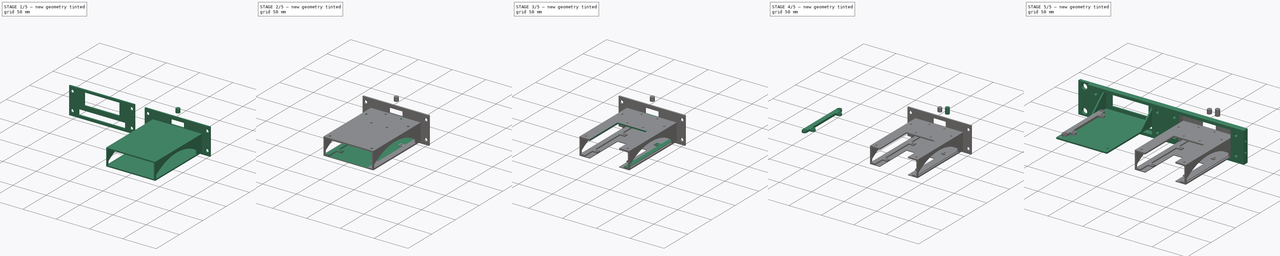
[diagram: build sequence overview — one tinted view per stage of 5, left to right]
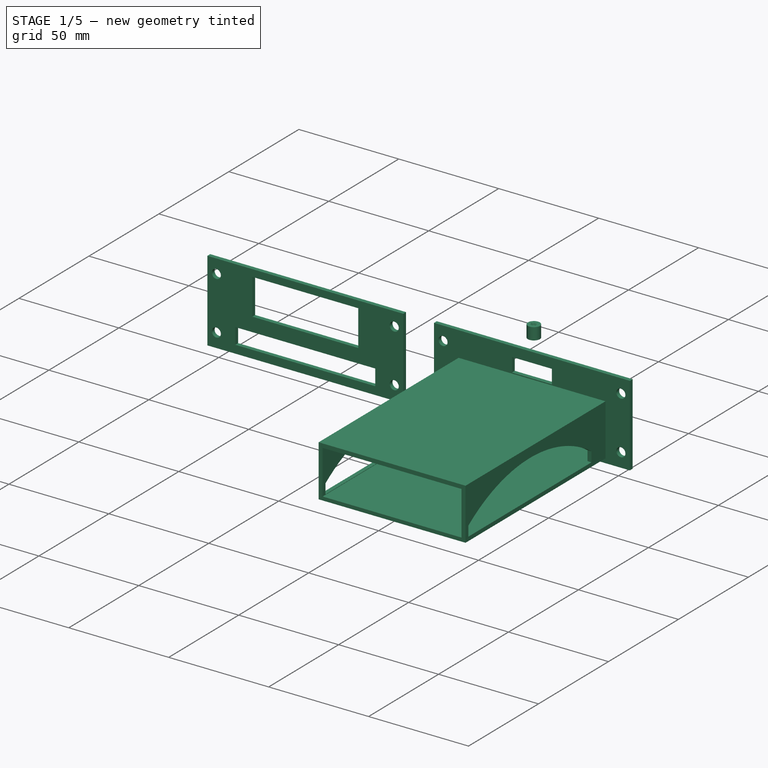
[diagram: stage 1 of 5 — iso view after this stage's code; geometry added in this stage tinted green]
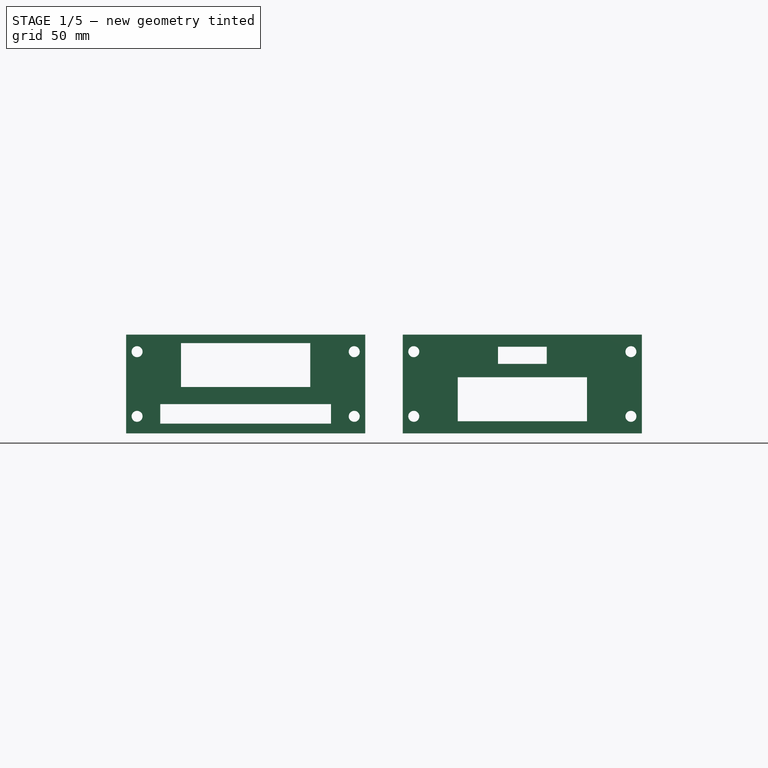
[diagram: stage 1 of 5 — front view after this stage's code; geometry added in this stage tinted green]
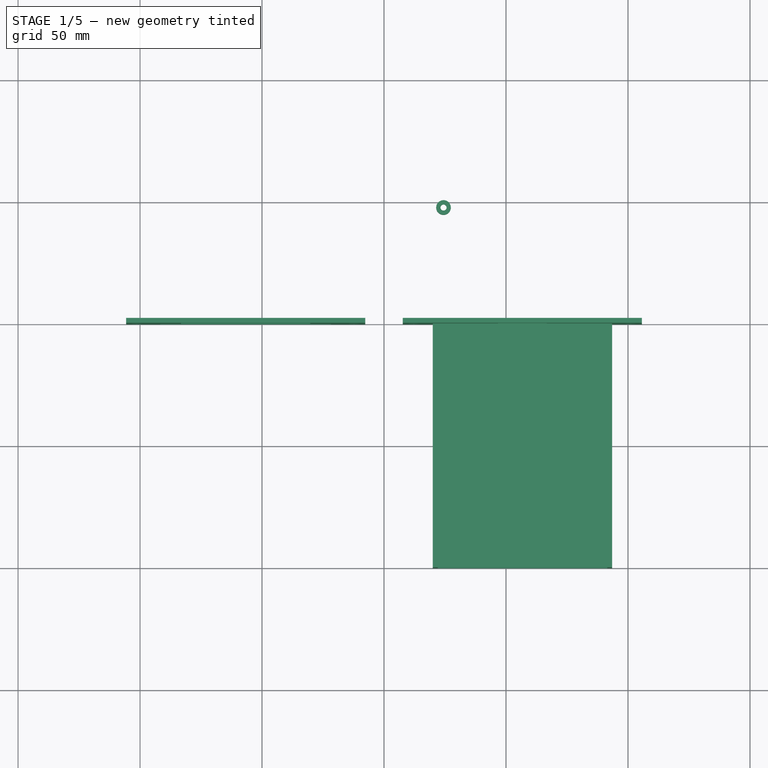
[diagram: stage 1 of 5 — top view after this stage's code; geometry added in this stage tinted green]
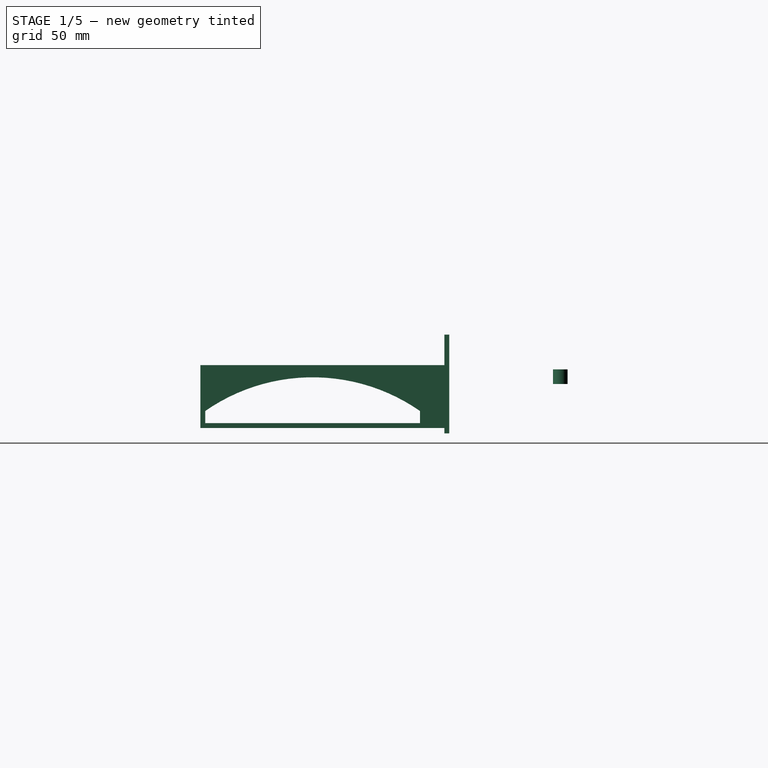
[diagram: stage 1 of 5 — right view after this stage's code; geometry added in this stage tinted green]
FCSTD DOCUMENT  (FreeCAD 0.21R33771 (Git))
Label: RpiAndDiskRackMount
License: All rights reserved
LicenseURL: http://en.wikipedia.org/wiki/All_rights_reserved
objects: Sketcher::SketchObject×21, PartDesign::Pocket×14, PartDesign::Pad×12, PartDesign::Body×6, PartDesign::Hole×2, PartDesign::Plane×1, PartDesign::Mirrored×1, PartDesign::Fillet×1
note: 87 computed .brp shape members not serialized (recipe doc carries the construction recipe); baked Part::Feature solids carry a one-line shape summary decoded from their .brp

FEATURE [PartDesign::Body] Body  label="MainBody"
  Group = -> [Pad003,Sketch004,Sketch,Pocket,Sketch005,Pocket001,Sketch006,Pocket002]
  Origin = -> Origin
  Tip = -> Pocket002
FEATURE [Sketcher::SketchObject] Sketch007  label="IoBoardSketch"
  FullyConstrained = true
  MapMode = 5
  Placement = pos=(0,0,0) rot=(1,0,0;1.5708rad)
  Support = -> [XZ_Plane001]
  expr: Constraints[10] = <<MainSketch>>.Constraints.window_height + 2 * 2 mm
  expr: Constraints[11] = <<MainSketch>>.Constraints.hole_to_hole_width + <<MainSketch>>.Constraints.hole_dia * 2
  expr: Constraints[34] = .Constraints.rpi_width / 2
  expr: Constraints[35] = .Constraints.ssd_width / 2
  expr: Constraints[41] = <<MainSketch>>.Constraints.hole_to_hole_height
  expr: Constraints[42] = <<MainSketch>>.Constraints.hole_to_hole_width
  expr: Constraints[43] = <<MainSketch>>.Constraints.hole_to_hole_width / 2
  expr: Constraints[47] = <<MainSketch>>.Constraints.hole_dia
  expr: Constraints[9] = <<MainSketch>>.Constraints.window_width_offset
  sketch-geometry (18):
    g0: LineSegment StartX=-105.713 StartY=20.25 StartZ=0 EndX=-7.7125 EndY=20.25 EndZ=0
    g1: LineSegment StartX=-7.7125 StartY=20.25 StartZ=0 EndX=-7.7125 EndY=-20.25 EndZ=0
    g2: LineSegment StartX=-7.7125 StartY=-20.25 StartZ=0 EndX=-105.713 EndY=-20.25 EndZ=0
    g3: LineSegment StartX=-105.713 StartY=-20.25 StartZ=0 EndX=-105.713 EndY=20.25 EndZ=0
    g4: GeomPoint X=-56.7125 Y=1e-16 Z=0
    g5: LineSegment StartX=-83.2125 StartY=16.75 StartZ=0 EndX=-83.2125 EndY=-1.25 EndZ=0
    g6: LineSegment StartX=-83.2125 StartY=-1.25 StartZ=0 EndX=-30.2125 EndY=-1.25 EndZ=0
    g7: LineSegment StartX=-30.2125 StartY=-1.25 StartZ=0 EndX=-30.2125 EndY=16.75 EndZ=0
    g8: LineSegment StartX=-30.2125 StartY=16.75 StartZ=0 EndX=-83.2125 EndY=16.75 EndZ=0
    g9: GeomPoint X=-56.7125 Y=1e-16 Z=0
    g10: LineSegment StartX=-91.7125 StartY=-8.25 StartZ=0 EndX=-21.7125 EndY=-8.25 EndZ=0
    g11: LineSegment StartX=-21.7125 StartY=-8.25 StartZ=0 EndX=-21.7125 EndY=-16.25 EndZ=0
    g12: LineSegment StartX=-21.7125 StartY=-16.25 StartZ=0 EndX=-91.7125 EndY=-16.25 EndZ=0
    g13: LineSegment StartX=-91.7125 StartY=-16.25 StartZ=0 EndX=-91.7125 EndY=-8.25 EndZ=0
    g14: Circle CenterX=-12.2125 CenterY=13.25 CenterZ=0 NormalX=0 NormalY=0 NormalZ=1 AngleXU=0 Radius=2.25
    g15: Circle CenterX=-12.2125 CenterY=-13.25 CenterZ=0 NormalX=0 NormalY=0 NormalZ=1 AngleXU=0 Radius=2.25
    g16: Circle CenterX=-101.213 CenterY=-13.25 CenterZ=0 NormalX=0 NormalY=0 NormalZ=1 AngleXU=0 Radius=2.25
    g17: Circle CenterX=-101.213 CenterY=13.25 CenterZ=0 NormalX=0 NormalY=0 NormalZ=1 AngleXU=0 Radius=2.25
  constraints (50):
    c: Coincident(g0,g1)
    c: Coincident(g1,g2)
    c: Coincident(g2,g3)
    c: Coincident(g3,g0)
    c: Horizontal(g0)
    c: Horizontal(g2)
    c: Vertical(g1)
    c: Symmetric(g0,g2,g-1)
    c: Symmetric(g2,g0,g4)
    c: DistanceX(g4,g-1) = 56.7125
    c: DistanceY(g1,g1) = 40.5
    c: DistanceX(g0,g0) = 98
    c: Coincident(g5,g6)
    c: Coincident(g6,g7)
    c: Coincident(g7,g8)
    c: Coincident(g8,g5)
    c: Horizontal(g6)
    c: Horizontal(g8)
    c: Vertical(g5)
    c: Vertical(g7)
    c: Coincident(g9,g4)
    c: DistanceX(g8,g8) = 53  'rpi_width'
    c: DistanceY(g7,g7) = 18
    c: Coincident(g10,g11)
    c: Coincident(g11,g12)
    c: Coincident(g12,g13)
    c: Coincident(g13,g10)
    c: Horizontal(g10)
    c: Horizontal(g12)
    c: Vertical(g11)
    c: Vertical(g13)
    c: DistanceY(g11,g11) = 8
    c: DistanceX(g12,g12) = 70  'ssd_width'
    c: DistanceY(g1,g11) = 4
    c: DistanceX(g5,g4) = 26.5
    c: DistanceX(g12,g4) = 35
    c: DistanceY(g10,g6) = 7
    c: Vertical(g17,g16)
    c: Horizontal(g14,g17)
    c: Horizontal(g16,g15)
    c: Symmetric(g14,g15,g-1)
    c: DistanceY(g15,g14) = 26.5
    c: DistanceX(g17,g14) = 89
    c: DistanceX(g17,g4) = 44.5
    c: Equal(g17,g16)
    c: Equal(g17,g15)
    c: Equal(g17,g14)
    c: Diameter(g17) = 4.5
    c: DistanceX(g0,g-1) = 105.713  'widthOffset'
    c: DistanceX(g4,g-1) = 56.7125  'PiPadCenterOffset'
FEATURE [PartDesign::Pad] Pad  label="IoBoard"
  Direction = (0,-1,-2e-16)
  Length = 2
  Length2 = 10
  Placement = pos=(0,0,0) rot=(1,0,0;1.5708rad)
  Profile = -> Sketch007
  ReferenceAxis = -> Sketch007 [N_Axis]
  Reversed = true
  Type = 0
FEATURE [PartDesign::Body] Body002  label="PiMount"
  Group = -> [Sketch013,Pad005,Sketch018,Pocket007,Sketch019,Pocket008,DatumPlane,Mirrored]
  Origin = -> Origin002
  Tip = -> Mirrored
FEATURE [Sketcher::SketchObject] Sketch020  label="PiKVMFrontPlateSketch"
  FullyConstrained = true
  MapMode = 5
  Placement = pos=(0,0,0) rot=(1,0,0;1.5708rad)
  Support = -> [XZ_Plane003]
  sketch-geometry (22):
    g0: LineSegment StartX=7.7 StartY=-20.25 StartZ=0 EndX=105.7 EndY=-20.25 EndZ=0
    g1: LineSegment StartX=105.7 StartY=-20.25 StartZ=0 EndX=105.7 EndY=20.25 EndZ=0
    g2: LineSegment StartX=105.7 StartY=20.25 StartZ=0 EndX=7.7 EndY=20.25 EndZ=0
    g3: LineSegment StartX=7.7 StartY=20.25 StartZ=0 EndX=7.7 EndY=-20.25 EndZ=0
    g4: GeomPoint X=-7.7 Y=20.25 Z=0
    g5: GeomPoint X=-105.7 Y=20.25 Z=0
    g6: Circle CenterX=12.2 CenterY=13.25 CenterZ=0 NormalX=0 NormalY=0 NormalZ=1 AngleXU=0 Radius=2.25
    g7: Circle CenterX=12.2 CenterY=-13.25 CenterZ=0 NormalX=0 NormalY=0 NormalZ=1 AngleXU=0 Radius=2.25
    g8: Circle CenterX=101.2 CenterY=-13.25 CenterZ=0 NormalX=0 NormalY=0 NormalZ=1 AngleXU=0 Radius=2.25
    g9: Circle CenterX=101.2 CenterY=13.25 CenterZ=0 NormalX=0 NormalY=0 NormalZ=1 AngleXU=0 Radius=2.25
    g10: GeomPoint X=56.7 Y=20.25 Z=0
    g11: GeomPoint X=56.7 Y=13.25 Z=0
    g12: LineSegment StartX=30.2 StartY=2.75 StartZ=0 EndX=30.2 EndY=-15.25 EndZ=0
    g13: LineSegment StartX=30.2 StartY=-15.25 StartZ=0 EndX=83.2 EndY=-15.25 EndZ=0
    g14: LineSegment StartX=83.2 StartY=-15.25 StartZ=0 EndX=83.2 EndY=2.75 EndZ=0
    g15: LineSegment StartX=83.2 StartY=2.75 StartZ=0 EndX=30.2 EndY=2.75 EndZ=0
    g16: GeomPoint X=56.7 Y=-6.25 Z=0
    g17: LineSegment StartX=46.7 StartY=15.25 StartZ=0 EndX=46.7 EndY=8.25 EndZ=0
    g18: LineSegment StartX=46.7 StartY=8.25 StartZ=0 EndX=66.7 EndY=8.25 EndZ=0
    g19: LineSegment StartX=66.7 StartY=8.25 StartZ=0 EndX=66.7 EndY=15.25 EndZ=0
    g20: LineSegment StartX=66.7 StartY=15.25 StartZ=0 EndX=46.7 EndY=15.25 EndZ=0
    g21: GeomPoint X=56.7 Y=11.75 Z=0
  constraints (51):
    c: Coincident(g0,g1)
    c: Coincident(g1,g2)
    c: Coincident(g2,g3)
    c: Coincident(g3,g0)
    c: Horizontal(g0)
    c: Horizontal(g2)
    c: Vertical(g1)
    c: Symmetric(g2,g0,g-1)
    c: DistanceX(g4,g-1) = 7.7
    c: DistanceY(g-1,g4) = 20.25
    c: Symmetric(g4,g2,g-2)
    c: DistanceX(g5,g4) = 98
    c: Symmetric(g5,g1,g-2)
    c: Equal(g6,g7)
    c: Equal(g7,g8)
    c: Equal(g8,g9)
    c: Diameter(g6) = 4.5
    c: DistanceY(g-1,g6) = 13.25
    c: DistanceX(g-1,g6) = 12.2
    c: Symmetric(g6,g7,g-1)
    c: Symmetric(g2,g1,g10)
    c: Vertical(g10,g11)
    c: Symmetric(g6,g9,g11)
    c: Horizontal(g9,g6)
    c: Symmetric(g9,g8,g-1)
    c: Coincident(g12,g13)
    c: Coincident(g13,g14)
    c: Coincident(g14,g15)
    c: Coincident(g15,g12)
    c: Horizontal(g13)
    c: Horizontal(g15)
    c: Vertical(g12)
    c: Vertical(g14)
    c: Symmetric(g13,g12,g16)
    c: Vertical(g16,g11)
    c: DistanceX(g13,g13) = 53
    c: DistanceY(g14,g14) = 18
    c: DistanceY(g0,g12) = 5
    c: Coincident(g17,g18)
    c: Coincident(g18,g19)
    c: Coincident(g19,g20)
    c: Coincident(g20,g17)
    c: Horizontal(g18)
    c: Horizontal(g20)
    c: Vertical(g17)
    c: Vertical(g19)
    c: Symmetric(g18,g17,g21)
    c: Vertical(g21,g11)
    c: DistanceY(g19,g19) = 7
    c: DistanceX(g18,g18) = 20
    c: DistanceY(g17,g2) = 5
FEATURE [PartDesign::Pad] Pad006  label="PiKVMFrontPlatePad"
  Direction = (0,-1,2e-16)
  Length = 2
  Length2 = 10
  Placement = pos=(0,0,0) rot=(1,0,0;1.5708rad)
  Profile = -> Sketch020
  ReferenceAxis = -> Sketch020 [N_Axis]
  Reversed = true
  Type = 0
FEATURE [Sketcher::SketchObject] Sketch022  label="PiBodySketch"
  ExternalGeometry = -> [Pad006]
  FullyConstrained = true
  MapMode = 5
  Placement = pos=(0,0,0) rot=(1,0,0;1.5708rad)
  Support = -> [Pad006]
  sketch-geometry (9):
    g0: LineSegment StartX=22 StartY=-16.25 StartZ=0 EndX=91.5 EndY=-16.25 EndZ=0
    g1: LineSegment StartX=93.5 StartY=7.75 StartZ=0 EndX=93.5 EndY=-18.05 EndZ=0
    g2: LineSegment StartX=93.5 StartY=-18.05 StartZ=0 EndX=20 EndY=-18.05 EndZ=0
    g3: LineSegment StartX=20 StartY=-18.05 StartZ=0 EndX=20 EndY=-16.25 EndZ=0
    g4: LineSegment StartX=20 StartY=7.75 StartZ=0 EndX=20 EndY=-16.25 EndZ=0
    g5: LineSegment StartX=20 StartY=7.75 StartZ=0 EndX=93.5 EndY=7.75 EndZ=0
    g6: LineSegment StartX=22 StartY=-16.25 StartZ=0 EndX=22 EndY=5.75 EndZ=0
    g7: LineSegment StartX=91.5 StartY=-16.25 StartZ=0 EndX=91.5 EndY=5.75 EndZ=0
    g8: LineSegment StartX=22 StartY=5.75 StartZ=0 EndX=91.5 EndY=5.75 EndZ=0
  constraints (27):
    c: Coincident(g1,g2)
    c: Coincident(g2,g3)
    c: Horizontal(g0)
    c: Horizontal(g2)
    c: Vertical(g1)
    c: Vertical(g3)
    c: DistanceY(g3,g-3) = 1
    c: DistanceY(g3,g3) = 1.8
    c: DistanceX(g-1,g3) = 20
    c: DistanceX(g3,g1) = 73.5
    c: Vertical(g4)
    c: Horizontal(g5)
    c: Coincident(g0,g7)
    c: Coincident(g0,g6)
    c: Coincident(g3,g4)
    c: Horizontal(g0,g3)
    c: Vertical(g6)
    c: Vertical(g7)
    c: Coincident(g4,g5)
    c: DistanceY(g6,g4) = 2
    c: DistanceX(g4,g6) = 2
    c: Horizontal(g7,g6)
    c: Coincident(g8,g6)
    c: Coincident(g8,g7)
    c: DistanceY(g-4,g6) = 3
    c: DistanceX(g7,g5) = 2
    c: Coincident(g5,g1)
FEATURE [PartDesign::Pad] Pad007  label="PiBodyPad"
  BaseFeature = -> Pad006
  Direction = (0,-1,2e-16)
  Length = 100
  Length2 = 10
  Placement = pos=(0,0,0) rot=(1,0,0;1.5708rad)
  Profile = -> Sketch022
  ReferenceAxis = -> Sketch022 [N_Axis]
  Type = 0
FEATURE [Sketcher::SketchObject] Sketch023  label="PiSideAirSketch"
  ExternalGeometry = -> [Pad007]
  FullyConstrained = true
  MapMode = 5
  Placement = pos=(93.5,0,0) rot=(0.707107,0,0.707107;3.14159rad)
  Support = -> [Pad007]
  sketch-geometry (5):
    g0: LineSegment StartX=-11.05 StartY=10 StartZ=0 EndX=-16.05 EndY=10 EndZ=0
    g1: LineSegment StartX=-16.05 StartY=10 StartZ=0 EndX=-16.05 EndY=98 EndZ=0
    g2: LineSegment StartX=-16.05 StartY=98 StartZ=0 EndX=-11.05 EndY=98 EndZ=0
    g3: ArcOfCircle CenterX=-74.2949 CenterY=54 CenterZ=0 NormalX=0 NormalY=0 NormalZ=1 AngleXU=0 Radius=77.0449 StartAngle=5.67535 EndAngle=6.89102
    g4: GeomPoint X=2.75 Y=54 Z=0
  constraints (15):
    c: Coincident(g0,g1)
    c: Coincident(g1,g2)
    c: Horizontal(g0)
    c: Horizontal(g2)
    c: Vertical(g1)
    c: DistanceY(g-3,g0) = 10
    c: DistanceY(g1,g-4) = 2
    c: DistanceX(g0,g0) = 5
    c: DistanceX(g2,g2) = 5
    c: Coincident(g3,g2)
    c: Coincident(g3,g0)
    c: DistanceX(g-4,g1) = 2
    c: PointOnObject(g4,g3)
    c: Horizontal(g3,g4)
    c: DistanceX(g4,g-5) = 5
FEATURE [PartDesign::Pocket] Pocket009  label="PiSideAirPocket"
  BaseFeature = -> Pad007
  Direction = (-1,0,2e-16)
  Length = 5
  Length2 = 5
  Placement = pos=(0,0,0) rot=(1,0,0;1.5708rad)
  Profile = -> Sketch023
  ReferenceAxis = -> Sketch023 [N_Axis]
  Type = 1
FEATURE [PartDesign::Body] Body004  label="Body"
  Group = -> [Sketch029,Pad008,Hole]
  Origin = -> Origin004
  Tip = -> Hole
FEATURE [Sketcher::SketchObject] Sketch030
  FullyConstrained = false
  MapMode = 5
  Support = -> [XY_Plane005]
  sketch-geometry (1):
    g0: Circle CenterX=24.3821 CenterY=47.5231 CenterZ=0 NormalX=0 NormalY=0 NormalZ=1 AngleXU=0 Radius=3
  constraints (1):
    c: Diameter(g0) = 6
FEATURE [PartDesign::Pad] Pad009
  Direction = (0,0,1)
  Length = 6
  Length2 = 10
  Profile = -> Sketch030
  ReferenceAxis = -> Sketch030 [N_Axis]
  Type = 0
FEATURE [PartDesign::Body] Body003  label="PiKVMount"
  Group = -> [Sketch020,Pad006,Sketch022,Pad007,Sketch023,Pocket009,Sketch024,Pocket010,Sketch026,Pocket011,Sketch027,Pocket012,Sketch031,Pad013,Pad014,Pad015,Pocket013,Pad016,Sketch032,Pocket014,Pocket015,Fillet]
  Origin = -> Origin003
  Tip = -> Fillet
FEATURE [PartDesign::Hole] Hole001
  BaseFeature = -> Pad009
  CustomThreadClearance = 0
  Depth = 20.9919
  DepthType = 0
  Diameter = 2.52
  DrillForDepth = false
  DrillPoint = 1
  DrillPointAngle = 118
  HoleCutCountersinkAngle = 90
  HoleCutCustomValues = false
  HoleCutDepth = 0
  HoleCutDiameter = 6.1
  HoleCutType = 0
  ModelThread = true
  Profile = -> Pad009 [Face3]
  Tapered = false
  TaperedAngle = 90
  ThreadClass = 0
  ThreadDepth = 20.9919
  ThreadDepthType = 0
  ThreadDirection = 0
  ThreadFit = 0
  ThreadSize = 9
  ThreadType = 1
  Threaded = true
  UseCustomThreadClearance = false
FEATURE [PartDesign::Body] Body005
  Group = -> [Sketch030,Pad009,Hole001]
  Origin = -> Origin005
  Tip = -> Hole001
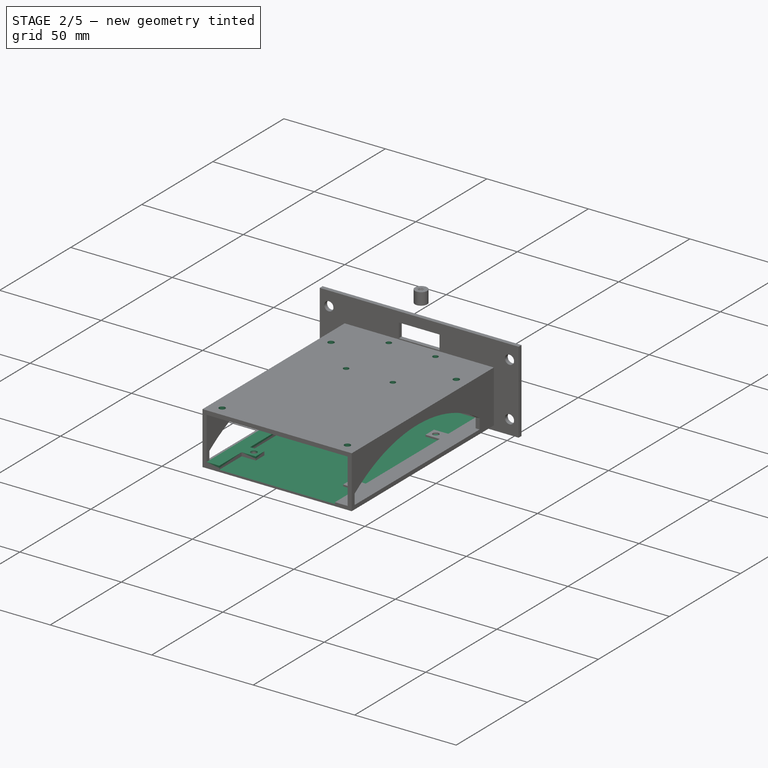
[diagram: stage 2 of 5 — iso view after this stage's code; geometry added in this stage tinted green]
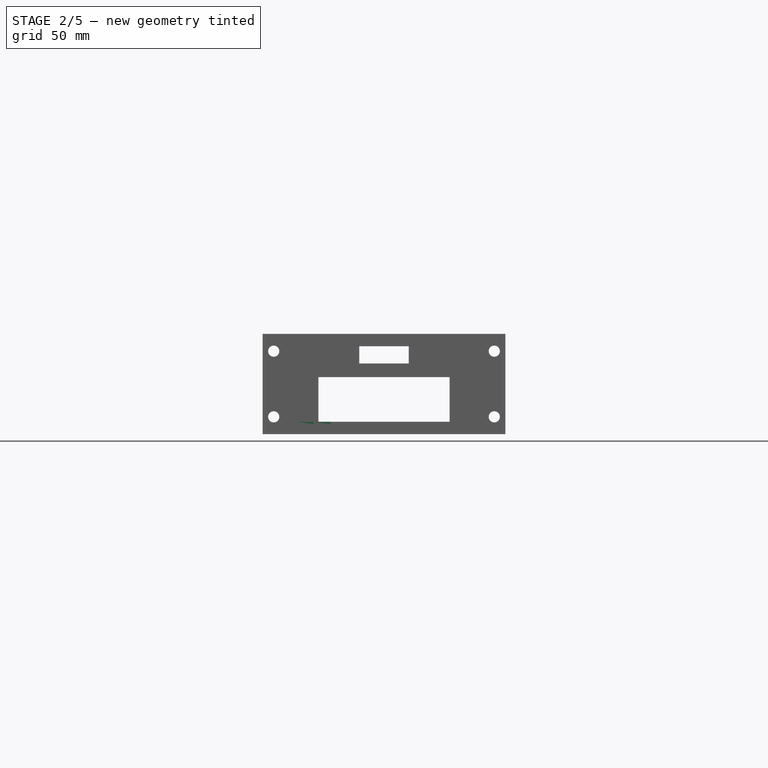
[diagram: stage 2 of 5 — front view after this stage's code; geometry added in this stage tinted green]
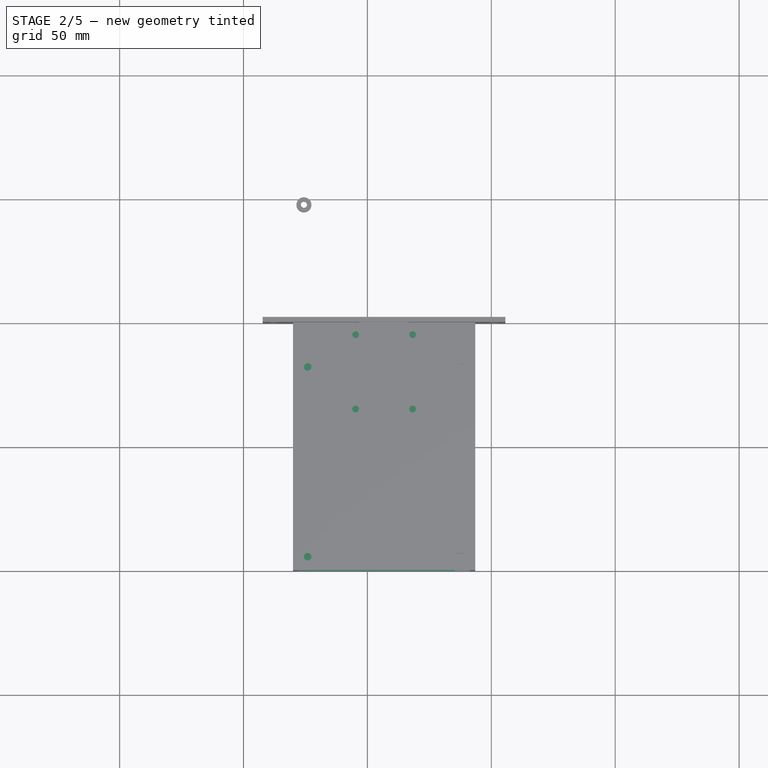
[diagram: stage 2 of 5 — top view after this stage's code; geometry added in this stage tinted green]
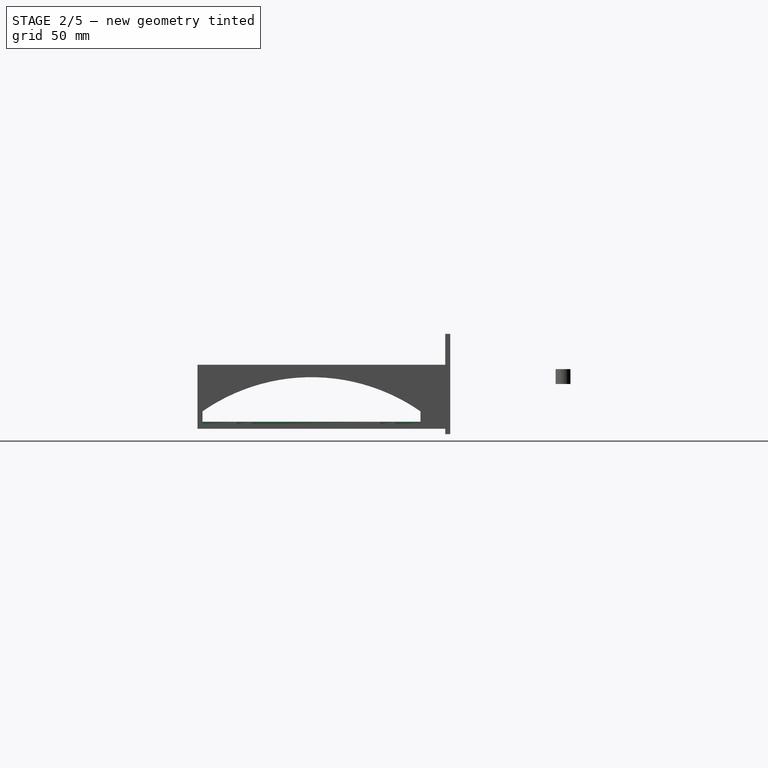
[diagram: stage 2 of 5 — right view after this stage's code; geometry added in this stage tinted green]
FEATURE [Sketcher::SketchObject] Sketch008  label="DiskMountSketch"
  ExternalGeometry = -> [Pad]
  FullyConstrained = true
  MapMode = 5
  Placement = pos=(0,0,0) rot=(1,0,0;1.5708rad)
  Support = -> [XZ_Plane001]
  sketch-geometry (8):
    g0: LineSegment StartX=-20.2125 StartY=18 StartZ=0 EndX=-20.2125 EndY=-8.25 EndZ=0
    g1: LineSegment StartX=-20.2125 StartY=-8.25 StartZ=0 EndX=-93.2125 EndY=-8.25 EndZ=0
    g2: LineSegment StartX=-93.2125 StartY=-8.25 StartZ=0 EndX=-93.2125 EndY=18 EndZ=0
    g3: LineSegment StartX=-91.2125 StartY=-6.25 StartZ=0 EndX=-22.2125 EndY=-6.25 EndZ=0
    g4: LineSegment StartX=-22.2125 StartY=-6.25 StartZ=0 EndX=-22.2125 EndY=18 EndZ=0
    g5: LineSegment StartX=-91.2125 StartY=18 StartZ=0 EndX=-91.2125 EndY=-6.25 EndZ=0
    g6: LineSegment StartX=-93.2125 StartY=18 StartZ=0 EndX=-91.2125 EndY=18 EndZ=0
    g7: LineSegment StartX=-22.2125 StartY=18 StartZ=0 EndX=-20.2125 EndY=18 EndZ=0
  constraints (24):
    c: Coincident(g0,g1)
    c: Coincident(g1,g2)
    c: Vertical(g0)
    c: Vertical(g2)
    c: DistanceX(g2,g0) = 73
    c: DistanceX(g-4,g0) = 1.5
    c: Horizontal(g-3,g1)
    c: Horizontal(g1)
    c: Coincident(g3,g4)
    c: Coincident(g5,g3)
    c: Horizontal(g3)
    c: Vertical(g4)
    c: Vertical(g5)
    c: DistanceX(g4,g0) = 2
    c: DistanceX(g1,g3) = 2
    c: DistanceY(g1,g3) = 2
    c: DistanceY(g-1,g0) = 18
    c: Coincident(g2,g6)
    c: Coincident(g6,g5)
    c: Coincident(g4,g7)
    c: Coincident(g7,g0)
    c: Horizontal(g6)
    c: Horizontal(g7)
    c: DistanceY(g-1,g5) = 18
FEATURE [PartDesign::Pad] Pad004  label="DiskMountPad"
  BaseFeature = -> Pad
  Direction = (0,-1,-2e-16)
  Length = 100
  Length2 = 10
  Placement = pos=(0,0,0) rot=(1,0,0;1.5708rad)
  Profile = -> Sketch008
  ReferenceAxis = -> Sketch008 [N_Axis]
  Type = 0
FEATURE [Sketcher::SketchObject] Sketch024  label="PiTopHolesSketch"
  FullyConstrained = true
  MapMode = 5
  Placement = pos=(0,1.8e-15,8.25) rot=(0,0,1;3.14159rad)
  Support = -> [Pocket009]
  expr: Constraints[10] = <<basePiAttachmentSketch>>.Constraints.diskHoleHalfLength * 2
  expr: Constraints[8] = <<basePiAttachmentSketch>>.Constraints.diskHoleFarOffset
  sketch-geometry (11):
    g0: Circle CenterX=-87.6 CenterY=94.6 CenterZ=0 NormalX=0 NormalY=0 NormalZ=1 AngleXU=0 Radius=1.5
    g1: Circle CenterX=-25.89 CenterY=94.6 CenterZ=0 NormalX=0 NormalY=0 NormalZ=1 AngleXU=0 Radius=1.5
    g2: Circle CenterX=-87.6 CenterY=18 CenterZ=0 NormalX=0 NormalY=0 NormalZ=1 AngleXU=0 Radius=1.5
    g3: Circle CenterX=-25.89 CenterY=18 CenterZ=0 NormalX=0 NormalY=0 NormalZ=1 AngleXU=0 Radius=1.5
    g4: Circle CenterX=-68.245 CenterY=5 CenterZ=0 NormalX=0 NormalY=0 NormalZ=1 AngleXU=0 Radius=1.325
    g5: Circle CenterX=-45.245 CenterY=5 CenterZ=0 NormalX=0 NormalY=0 NormalZ=1 AngleXU=0 Radius=1.325
    g6: Circle CenterX=-68.245 CenterY=35 CenterZ=0 NormalX=0 NormalY=0 NormalZ=1 AngleXU=0 Radius=1.325
    g7: Circle CenterX=-45.245 CenterY=35 CenterZ=0 NormalX=0 NormalY=0 NormalZ=1 AngleXU=0 Radius=1.325
    g8: GeomPoint X=-56.745 Y=94.6 Z=0
    g9: GeomPoint X=-56.745 Y=18 Z=0
    g10: LineSegment StartX=-56.745 StartY=94.6 StartZ=0 EndX=-56.745 EndY=18 EndZ=0
  constraints (27):
    c: Vertical(g0,g2)
    c: Vertical(g1,g3)
    c: Horizontal(g0,g1)
    c: Horizontal(g2,g3)
    c: Horizontal(g4,g5)
    c: Vertical(g7,g5)
    c: Vertical(g6,g4)
    c: Symmetric(g0,g1,g8)
    c: DistanceX(g2,g-1) = 87.6
    c: DistanceY(g-1,g2) = 18
    c: DistanceY(g2,g0) = 76.6
    c: DistanceX(g0,g1) = 61.71
    c: Equal(g2,g0)
    c: Equal(g2,g1)
    c: Equal(g2,g3)
    c: Diameter(g2) = 3  'diskSkrewHoleDia'
    c: Symmetric(g2,g3,g9)
    c: Coincident(g10,g8)
    c: Coincident(g10,g9)
    c: Symmetric(g6,g7,g10)
    c: Equal(g4,g5)
    c: Equal(g4,g7)
    c: Equal(g4,g6)
    c: Diameter(g4) = 2.65  'adaptedHoleDia'
    c: DistanceX(g4,g5) = 23
    c: DistanceY(g4,g6) = 30
    c: DistanceY(g-1,g5) = 5
FEATURE [PartDesign::Pocket] Pocket010  label="PiTopHolesPocket"
  BaseFeature = -> Pocket009
  Direction = (0,-2e-16,-1)
  Length = 5
  Length2 = 5
  Placement = pos=(0,0,0) rot=(1,0,0;1.5708rad)
  Profile = -> Sketch024
  ReferenceAxis = -> Sketch024 [N_Axis]
  Type = 0
FEATURE [Sketcher::SketchObject] Sketch026  label="PiBottemMountSketch"
  FullyConstrained = true
  MapMode = 5
  Placement = pos=(0,-4e-15,-18.05) rot=(1,0,0;3.14159rad)
  sketch-geometry (4):
    g0: Circle CenterX=81.24 CenterY=81.3 CenterZ=0 NormalX=0 NormalY=0 NormalZ=1 AngleXU=0 Radius=1.5
    g1: Circle CenterX=81.24 CenterY=23.3 CenterZ=0 NormalX=0 NormalY=0 NormalZ=1 AngleXU=0 Radius=1.5
    g2: Circle CenterX=32.25 CenterY=81.3 CenterZ=0 NormalX=0 NormalY=0 NormalZ=1 AngleXU=0 Radius=1.5
    g3: Circle CenterX=32.25 CenterY=23.3 CenterZ=0 NormalX=0 NormalY=0 NormalZ=1 AngleXU=0 Radius=1.5
  constraints (12):
    c: DistanceY(g-1,g2) = 81.3
    c: DistanceX(g-1,g2) = 32.25
    c: DistanceX(g1) = 81.24
    c: DistanceY(g-1,g1) = 23.3
    c: Vertical(g1,g0)
    c: Horizontal(g2,g0)
    c: Horizontal(g3,g1)
    c: Vertical(g3,g2)
    c: Equal(g2,g0)
    c: Equal(g2,g3)
    c: Equal(g2,g1)
    c: Diameter(g2) = 3
FEATURE [PartDesign::Pocket] Pocket011  label="PiBottomMountPocket"
  BaseFeature = -> Pocket010
  Direction = (0,2e-16,1)
  Length = 5
  Length2 = 5
  Placement = pos=(0,0,0) rot=(1,0,0;1.5708rad)
  Profile = -> Sketch026
  ReferenceAxis = -> Sketch026 [N_Axis]
  Type = 0
FEATURE [Sketcher::SketchObject] Sketch027
  ExternalGeometry = -> [Pocket011]
  FullyConstrained = true
  MapMode = 5
  Placement = pos=(0,-4e-15,-18.05) rot=(1,0,0;3.14159rad)
  Support = -> [Pocket011]
  sketch-geometry (20):
    g0: LineSegment StartX=28.25 StartY=84.3 StartZ=0 EndX=35.25 EndY=84.3 EndZ=0
    g1: LineSegment StartX=35.25 StartY=84.3 StartZ=0 EndX=35.25 EndY=78.3 EndZ=0
    g2: LineSegment StartX=35.25 StartY=78.3 StartZ=0 EndX=28.25 EndY=78.3 EndZ=0
    g3: LineSegment StartX=28.25 StartY=78.3 StartZ=0 EndX=28.25 EndY=26.3 EndZ=0
    g4: LineSegment StartX=28.25 StartY=26.3 StartZ=0 EndX=35.25 EndY=26.3 EndZ=0
    g5: LineSegment StartX=35.25 StartY=26.3 StartZ=0 EndX=35.25 EndY=20.3 EndZ=0
    g6: LineSegment StartX=35.25 StartY=20.3 StartZ=0 EndX=28.25 EndY=20.3 EndZ=0
    g7: LineSegment StartX=28.25 StartY=20.3 StartZ=0 EndX=28.25 EndY=0 EndZ=0
    g8: LineSegment StartX=28.25 StartY=0 StartZ=0 EndX=85.24 EndY=0 EndZ=0
    g9: LineSegment StartX=85.24 StartY=0 StartZ=0 EndX=85.24 EndY=20.3 EndZ=0
    g10: LineSegment StartX=85.24 StartY=20.3 StartZ=0 EndX=78.24 EndY=20.3 EndZ=0
    g11: LineSegment StartX=78.24 StartY=20.3 StartZ=0 EndX=78.24 EndY=26.3 EndZ=0
    g12: LineSegment StartX=78.24 StartY=26.3 StartZ=0 EndX=85.24 EndY=26.3 EndZ=0
    g13: LineSegment StartX=85.24 StartY=26.3 StartZ=0 EndX=85.24 EndY=78.3 EndZ=0
    g14: LineSegment StartX=85.24 StartY=78.3 StartZ=0 EndX=78.24 EndY=78.3 EndZ=0
    g15: LineSegment StartX=78.24 StartY=78.3 StartZ=0 EndX=78.24 EndY=84.3 EndZ=0
    g16: LineSegment StartX=78.24 StartY=84.3 StartZ=0 EndX=85.24 EndY=84.3 EndZ=0
    g17: LineSegment StartX=85.24 StartY=84.3 StartZ=0 EndX=85.24 EndY=100 EndZ=0
    g18: LineSegment StartX=85.24 StartY=100 StartZ=0 EndX=28.25 EndY=100 EndZ=0
    g19: LineSegment StartX=28.25 StartY=100 StartZ=0 EndX=28.25 EndY=84.3 EndZ=0
  constraints (60):
    c: Horizontal(g0)
    c: Coincident(g0,g1)
    c: Vertical(g1)
    c: Coincident(g1,g2)
    c: Horizontal(g2)
    c: Coincident(g2,g3)
    c: Vertical(g3)
    c: Coincident(g3,g4)
    c: Horizontal(g4)
    c: Coincident(g4,g5)
    c: Vertical(g5)
    c: Coincident(g5,g6)
    c: Horizontal(g6)
    c: Coincident(g6,g7)
    c: Vertical(g7)
    c: Coincident(g7,g8)
    c: Horizontal(g8)
    c: Coincident(g8,g9)
    c: Vertical(g9)
    c: Coincident(g9,g10)
    c: Horizontal(g10)
    c: Coincident(g10,g11)
    c: Vertical(g11)
    c: Coincident(g11,g12)
    c: Horizontal(g12)
    c: Coincident(g12,g13)
    c: Vertical(g13)
    c: Coincident(g13,g14)
    c: Horizontal(g14)
    c: Coincident(g14,g15)
    c: Vertical(g15)
    c: Coincident(g15,g16)
    c: Horizontal(g16)
    c: Coincident(g16,g17)
    c: Vertical(g17)
    c: Coincident(g17,g18)
    c: Horizontal(g18)
    c: Coincident(g18,g19)
    c: Coincident(g19,g0)
    c: Vertical(g19)
    c: DistanceX(g-3,g1) = 3
    c: DistanceY(g1,g0) = 6
    c: DistanceY(g-3,g0) = 3
    c: Horizontal(g0,g15)
    c: DistanceX(g0,g-3) = 4
    c: Vertical(g18,g2)
    c: Vertical(g3,g6)
    c: Vertical(g1,g4)
    c: DistanceX(g15,g-4) = 3
    c: DistanceX(g-4,g16) = 4
    c: Horizontal(g14,g1)
    c: Vertical(g17,g13)
    c: Vertical(g12,g9)
    c: Vertical(g14,g11)
    c: DistanceY(g-6,g4) = 3
    c: DistanceY(g5,g5) = 6
    c: Horizontal(g11,g4)
    c: Horizontal(g10,g5)
    c: DistanceY(g-1,g7) = 0
    c: DistanceY(g18,g-7) = 0
FEATURE [PartDesign::Pocket] Pocket012
  BaseFeature = -> Pocket011
  Direction = (0,2e-16,1)
  Length = 5
  Length2 = 5
  Placement = pos=(0,0,0) rot=(1,0,0;1.5708rad)
  Profile = -> Sketch027
  ReferenceAxis = -> Sketch027 [N_Axis]
  Type = 0
FEATURE [Sketcher::SketchObject] Sketch031
  FullyConstrained = false
  MapMode = 5
  Placement = pos=(0,-4e-15,-18.05) rot=(1,0,0;3.14159rad)
  sketch-geometry (4):
    g0: LineSegment StartX=93.5 StartY=0 StartZ=0 EndX=20 EndY=0 EndZ=0
    g1: LineSegment StartX=20 StartY=0 StartZ=0 EndX=20 EndY=100 EndZ=0
    g2: LineSegment StartX=20 StartY=100 StartZ=0 EndX=93.5 EndY=100 EndZ=0
    g3: LineSegment StartX=93.5 StartY=100 StartZ=0 EndX=93.5 EndY=0 EndZ=0
  constraints (8):
    c: Coincident(g0,g1)
    c: Coincident(g1,g2)
    c: Coincident(g2,g3)
    c: Coincident(g3,g0)
    c: Horizontal(g0)
    c: Horizontal(g2)
    c: Vertical(g1)
    c: Vertical(g3)
FEATURE [PartDesign::Pad] Pad013
  BaseFeature = -> Pocket012
  Direction = (0,-2e-16,-1)
  Length = 1
  Length2 = 10
  Placement = pos=(0,0,0) rot=(1,0,0;1.5708rad)
  Profile = -> Sketch031
  ReferenceAxis = -> Sketch031 [N_Axis]
  Reversed = true
  Type = 0
FEATURE [PartDesign::Pad] Pad014
  BaseFeature = -> Pad013
  Direction = (0,2e-16,1)
  Length = 1
  Length2 = 10
  Placement = pos=(0,0,0) rot=(1,0,0;1.5708rad)
  Profile = -> Pad013 [Face55]
  Type = 0
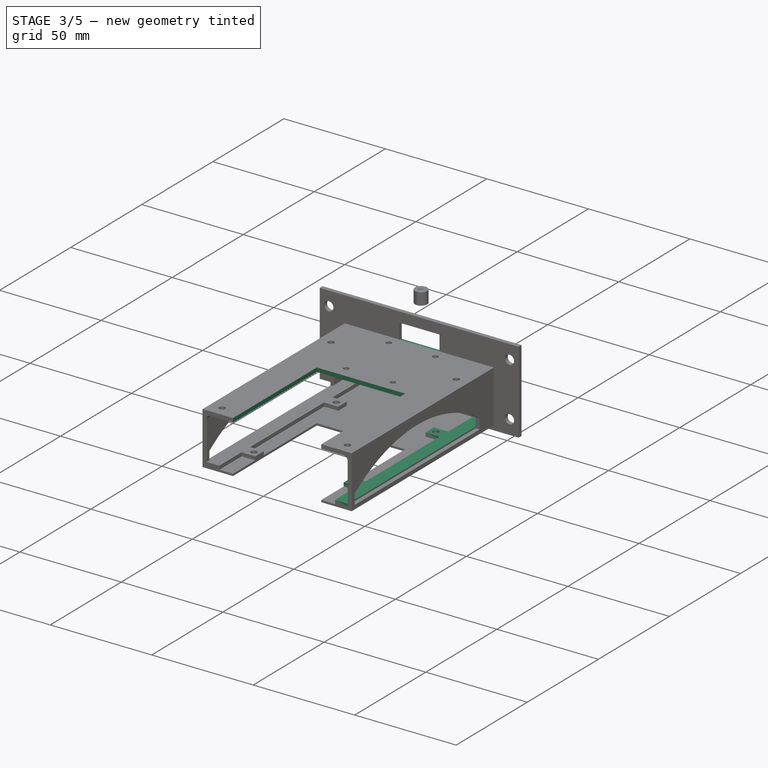
[diagram: stage 3 of 5 — iso view after this stage's code; geometry added in this stage tinted green]
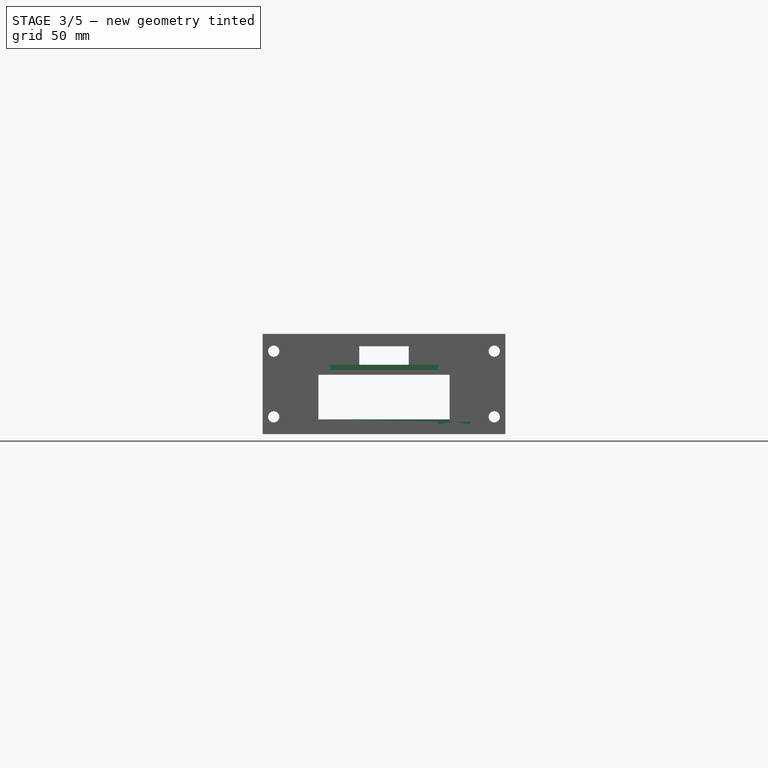
[diagram: stage 3 of 5 — front view after this stage's code; geometry added in this stage tinted green]
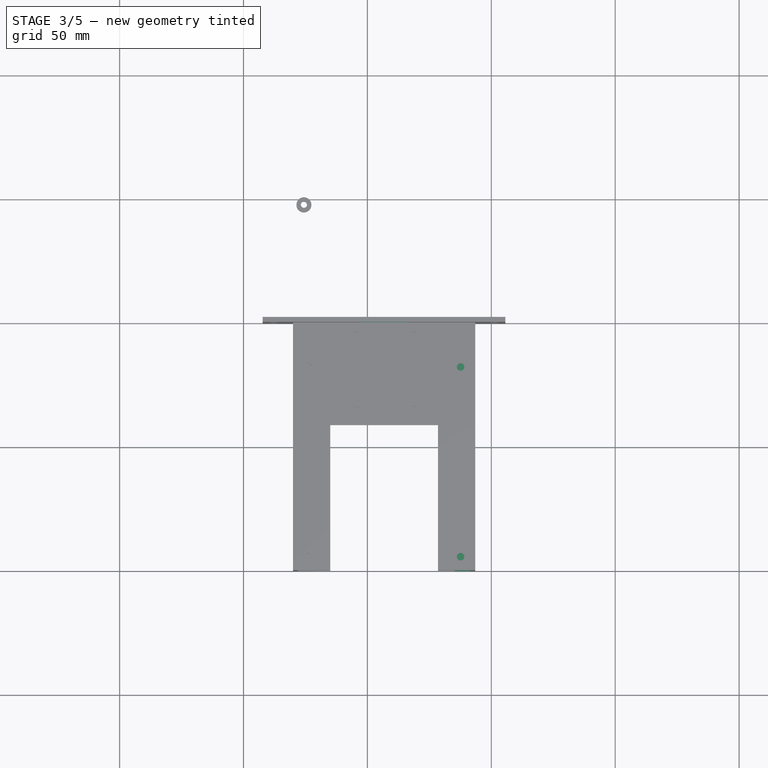
[diagram: stage 3 of 5 — top view after this stage's code; geometry added in this stage tinted green]
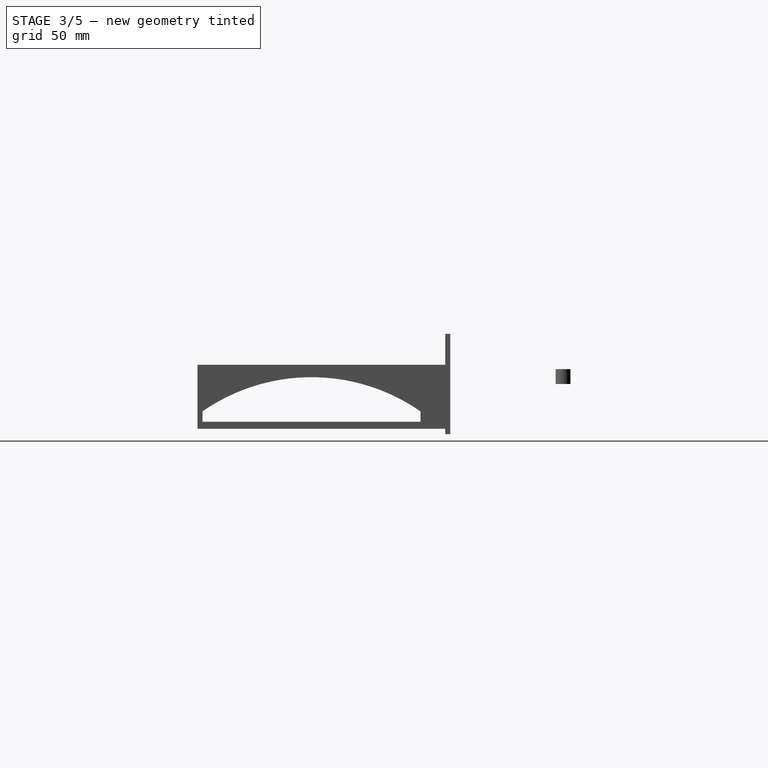
[diagram: stage 3 of 5 — right view after this stage's code; geometry added in this stage tinted green]
FEATURE [PartDesign::Pad] Pad015
  BaseFeature = -> Pad014
  Direction = (0,2e-16,1)
  Length = 1
  Length2 = 10
  Placement = pos=(0,0,0) rot=(1,0,0;1.5708rad)
  Profile = -> Pad014 [Face59]
  Type = 0
FEATURE [PartDesign::Pocket] Pocket013
  BaseFeature = -> Pad015
  Direction = (0,2e-16,1)
  Length = 1
  Length2 = 5
  Placement = pos=(0,0,0) rot=(1,0,0;1.5708rad)
  Profile = -> Pad015 [Face27]
  Type = 0
FEATURE [PartDesign::Pad] Pad016
  BaseFeature = -> Pocket013
  Direction = (0,2e-16,1)
  Length = 1
  Length2 = 10
  Placement = pos=(0,0,0) rot=(1,0,0;1.5708rad)
  Profile = -> Pocket013 [Face28]
  Type = 0
FEATURE [Sketcher::SketchObject] Sketch032
  ExternalGeometry = -> [Pad016]
  FullyConstrained = true
  MapMode = 5
  Placement = pos=(0,1.7e-15,7.75) rot=(0,0,1;3.14159rad)
  Support = -> [Pad016]
  sketch-geometry (4):
    g0: LineSegment StartX=-35 StartY=100 StartZ=0 EndX=-78.5 EndY=100 EndZ=0
    g1: LineSegment StartX=-78.5 StartY=100 StartZ=0 EndX=-78.5 EndY=41 EndZ=0
    g2: LineSegment StartX=-78.5 StartY=41 StartZ=0 EndX=-35 EndY=41 EndZ=0
    g3: LineSegment StartX=-35 StartY=41 StartZ=0 EndX=-35 EndY=100 EndZ=0
  constraints (12):
    c: Coincident(g0,g1)
    c: Coincident(g1,g2)
    c: Coincident(g2,g3)
    c: Coincident(g3,g0)
    c: Horizontal(g0)
    c: Horizontal(g2)
    c: Vertical(g1)
    c: Vertical(g3)
    c: Horizontal(g0,g-3)
    c: DistanceX(g-3,g0) = 15
    c: DistanceX(g0,g-3) = 15
    c: DistanceY(g2,g0) = 59
FEATURE [PartDesign::Pocket] Pocket014
  BaseFeature = -> Pad016
  Direction = (0,-2e-16,-1)
  Length = 5
  Length2 = 5
  Placement = pos=(0,0,0) rot=(1,0,0;1.5708rad)
  Profile = -> Sketch032
  ReferenceAxis = -> Sketch032 [N_Axis]
  Type = 1
FEATURE [PartDesign::Pocket] Pocket015
  BaseFeature = -> Pocket014
  Direction = (0,-2e-16,-1)
  Length = 1
  Length2 = 5
  Placement = pos=(0,0,0) rot=(1,0,0;1.5708rad)
  Profile = -> Pocket014 [Face11]
  Type = 0
FEATURE [PartDesign::Fillet] Fillet
  Base = -> Pocket015 [Edge234,Edge235]
  BaseFeature = -> Pocket015
  Placement = pos=(0,0,0) rot=(1,0,0;1.5708rad)
  Radius = 2
  SupportTransform = false
  UseAllEdges = false
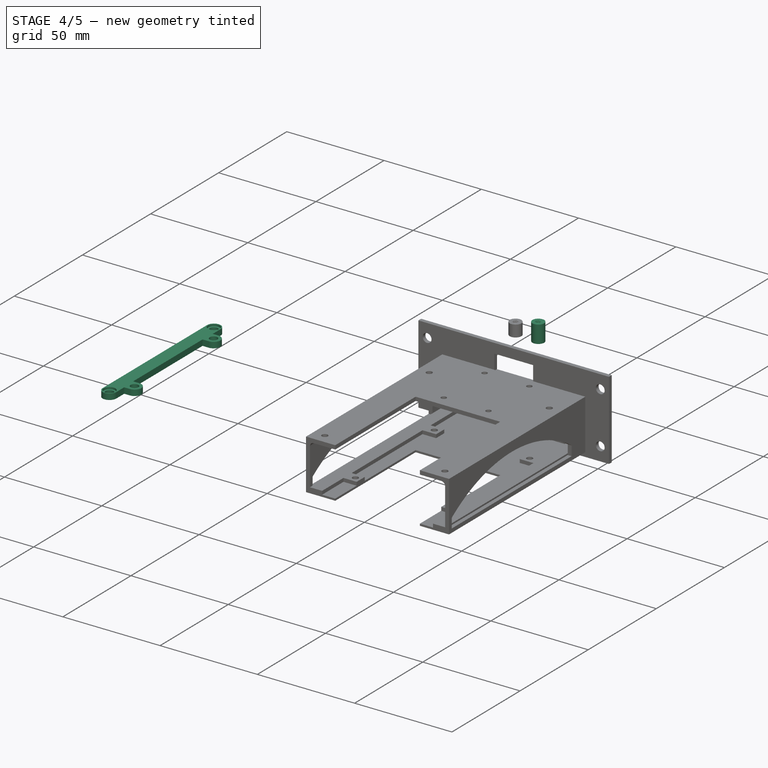
[diagram: stage 4 of 5 — iso view after this stage's code; geometry added in this stage tinted green]
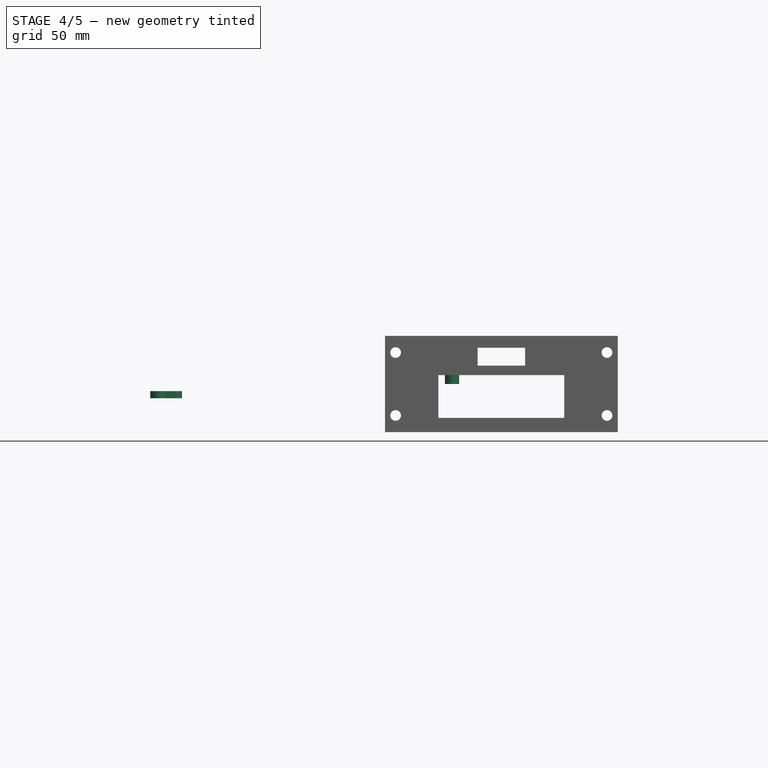
[diagram: stage 4 of 5 — front view after this stage's code; geometry added in this stage tinted green]
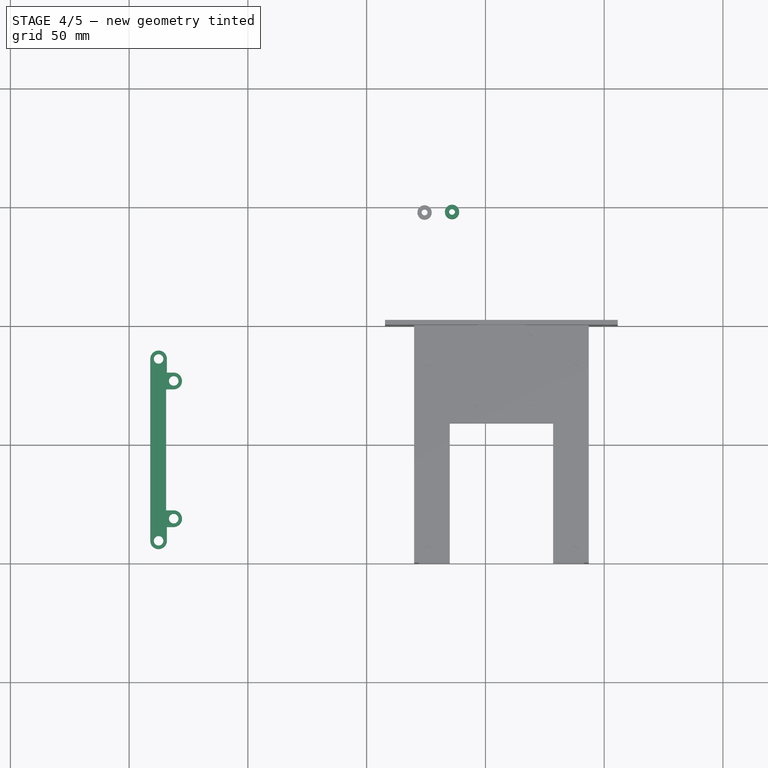
[diagram: stage 4 of 5 — top view after this stage's code; geometry added in this stage tinted green]
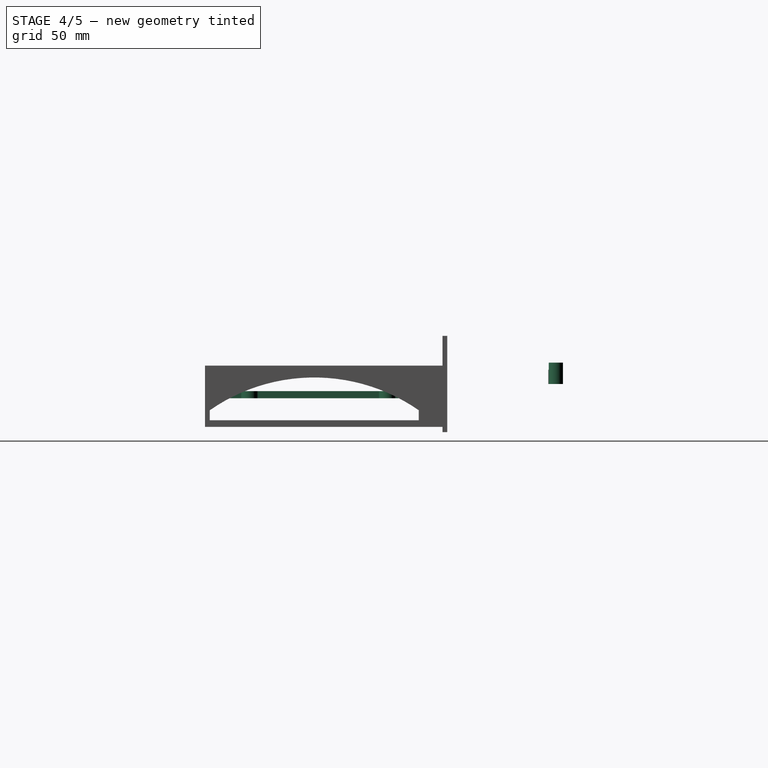
[diagram: stage 4 of 5 — right view after this stage's code; geometry added in this stage tinted green]
FEATURE [PartDesign::Body] Body001  label="PiModule"
  Group = -> [Sketch007,Pad,Sketch008,Pad004,Sketch011,Pocket005,Sketch012,Pocket006]
  Origin = -> Origin001
  Tip = -> Pocket006
FEATURE [Sketcher::SketchObject] Sketch013  label="basePiAttachmentSketch"
  AttachmentOffset = pos=(0,0,-6) rot=(0,0,1;0rad)
  FullyConstrained = true
  MapMode = 5
  Placement = pos=(0,0,-6) rot=(0,0,1;0rad)
  Support = -> [XY_Plane002]
  expr: .Constraints.diskHoleHalfLength = <<SkrewSketch>>.Constraints.hole_depth_diff / 2
  sketch-geometry (12):
    g0: Circle CenterX=-87.6 CenterY=-14 CenterZ=0 NormalX=0 NormalY=0 NormalZ=1 AngleXU=0 Radius=2
    g1: Circle CenterX=-81.24 CenterY=-23.3 CenterZ=0 NormalX=0 NormalY=0 NormalZ=1 AngleXU=0 Radius=2
    g2: GeomPoint X=-87.6 Y=-23.3 Z=0
    g3: ArcOfCircle CenterX=-87.6 CenterY=-14 CenterZ=0 NormalX=0 NormalY=0 NormalZ=1 AngleXU=0 Radius=3.5 StartAngle=3e-16 EndAngle=3.14159
    g4: ArcOfCircle CenterX=-81.24 CenterY=-23.3 CenterZ=0 NormalX=0 NormalY=0 NormalZ=1 AngleXU=0 Radius=3.5 StartAngle=4.71239 EndAngle=7.85049
    g5: LineSegment StartX=-81.2278 StartY=-19.8 StartZ=0 EndX=-84.1 EndY=-19.79 EndZ=0
    g6: LineSegment StartX=-84.1 StartY=-14 StartZ=0 EndX=-84.1 EndY=-19.79 EndZ=0
    g7: GeomPoint X=-87.6 Y=-52.3 Z=0
    g8: LineSegment StartX=-91.1 StartY=-14 StartZ=0 EndX=-91.1 EndY=-52.3 EndZ=0
    g9: LineSegment StartX=-84.44 StartY=-52.3 StartZ=0 EndX=-84.44 EndY=-26.8 EndZ=0
    g10: LineSegment StartX=-91.1 StartY=-52.3 StartZ=0 EndX=-84.44 EndY=-52.3 EndZ=0
    g11: LineSegment StartX=-81.24 StartY=-26.8 StartZ=0 EndX=-84.44 EndY=-26.8 EndZ=0
  constraints (36):
    c: DistanceX(g0,g1) = 6.36
    c: DistanceY(g1,g0) = 9.3
    c: DistanceY(g1,g-1) = 23.3
    c: Diameter(g1) = 4
    c: Diameter(g0) = 4
    c: Horizontal(g2,g1)
    c: Vertical(g0,g2)
    c: Coincident(g3,g0)
    c: Tangent(g4,g5) = -1.5708
    c: Coincident(g4,g1)
    c: Radius(g4) = 3.5
    c: Radius(g3) = 3.5
    c: Tangent(g3,g6) = 1.5708
    c: Vertical(g6)
    c: DistanceY(g6,g6) = 5.79
    c: Coincident(g5,g6)
    c: Vertical(g7,g0)
    c: DistanceY(g7,g0) = 38.3  'diskHoleHalfLength'
    c: Coincident(g8,g10)
    c: Horizontal(g10)
    c: Vertical(g9)
    c: DistanceX(g10,g10) = 6.66
    c: Coincident(g9,g10)
    c: DistanceY(g9,g-1) = 52.3
    c: DistanceX(g9,g-1) = 84.44
    c: Coincident(g3,g8)
    c: Tangent(g4,g11) = 1.5708
    c: Horizontal(g11)
    c: Vertical(g8)
    c: Coincident(g11,g9)
    c: Horizontal(g3,g3)
    c: DistanceX(g1,g-1) = 81.24  'piHoleFarOffset'
    c: DistanceY(g1,g-1) = 23.3  'piHoleFarHeightOffset'
    c: DistanceX(g0,g-1) = 87.6  'diskHoleFarOffset'
    c: DistanceY(g0,g-1) = 14  'diskHoleFarHeightOffset'
    c: DistanceY(g7,g1) = 29  'piHoleHalfLength'
FEATURE [PartDesign::Pad] Pad005  label="BasePiAttachment"
  Direction = (0,0,1)
  Length = 3
  Length2 = 10
  Profile = -> Sketch013
  ReferenceAxis = -> Sketch013 [N_Axis]
  Type = 0
FEATURE [Sketcher::SketchObject] Sketch018
  AttachmentOffset = pos=(0,0,-4) rot=(0,0,1;0rad)
  FullyConstrained = false
  MapMode = 5
  Placement = pos=(0,0,-4) rot=(0,0,1;0rad)
  Support = -> [XY_Plane002]
  sketch-geometry (1):
    g0: Circle CenterX=-81.215 CenterY=-23.3 CenterZ=0 NormalX=0 NormalY=0 NormalZ=1 AngleXU=0 Radius=3
  constraints (1):
    c: Diameter(g0) = 6
FEATURE [PartDesign::Pocket] Pocket007
  BaseFeature = -> Pad005
  Direction = (0,0,-1)
  Length = 3
  Length2 = 5
  Profile = -> Sketch018
  ReferenceAxis = -> Sketch018 [N_Axis]
  Type = 0
FEATURE [Sketcher::SketchObject] Sketch019
  AttachmentOffset = pos=(0,0,-3) rot=(0,0,1;0rad)
  ExternalGeometry = -> [Pocket007]
  FullyConstrained = false
  MapMode = 5
  Placement = pos=(0,0,-3) rot=(0,0,1;0rad)
  Support = -> [XY_Plane002]
  sketch-geometry (1):
    g0: Circle CenterX=-87.58 CenterY=-14 CenterZ=0 NormalX=0 NormalY=0 NormalZ=1 AngleXU=0 Radius=3
  constraints (1):
    c: Diameter(g0) = 6
FEATURE [PartDesign::Pocket] Pocket008
  BaseFeature = -> Pocket007
  Direction = (0,0,-1)
  Length = 1
  Length2 = 5
  Profile = -> Sketch019
  ReferenceAxis = -> Sketch019 [N_Axis]
  Type = 0
FEATURE [PartDesign::Plane] DatumPlane
  Length = 60
  MapMode = 5
  Placement = pos=(0,-52.3,0) rot=(1,0,0;1.5708rad)
  ResizeMode = 0
  Support = -> [Pocket008]
  Width = 60
FEATURE [PartDesign::Mirrored] Mirrored
  BaseFeature = -> Pocket008
  MirrorPlane = -> DatumPlane
  Originals = -> [Pad005,Pocket008,Pocket007]
FEATURE [Sketcher::SketchObject] Sketch029
  FullyConstrained = false
  MapMode = 5
  Support = -> [XY_Plane004]
  sketch-geometry (1):
    g0: Circle CenterX=35.9483 CenterY=47.7168 CenterZ=0 NormalX=0 NormalY=0 NormalZ=1 AngleXU=0 Radius=3
  constraints (1):
    c: Diameter(g0) = 6
FEATURE [PartDesign::Pad] Pad008
  Direction = (0,0,1)
  Length = 9
  Length2 = 10
  Profile = -> Sketch029
  ReferenceAxis = -> Sketch029 [N_Axis]
  Type = 0
FEATURE [PartDesign::Hole] Hole
  BaseFeature = -> Pad008
  CustomThreadClearance = 0
  Depth = 25
  DepthType = 0
  Diameter = 2.52
  DrillForDepth = false
  DrillPoint = 1
  DrillPointAngle = 118
  HoleCutCountersinkAngle = 90
  HoleCutCustomValues = false
  HoleCutDepth = 0
  HoleCutDiameter = 6.1
  HoleCutType = 0
  ModelThread = true
  Profile = -> Pad008 [Face3]
  Tapered = false
  TaperedAngle = 90
  ThreadClass = 0
  ThreadDepth = 25
  ThreadDepthType = 0
  ThreadDirection = 0
  ThreadFit = 0
  ThreadSize = 9
  ThreadType = 1
  Threaded = true
  UseCustomThreadClearance = false
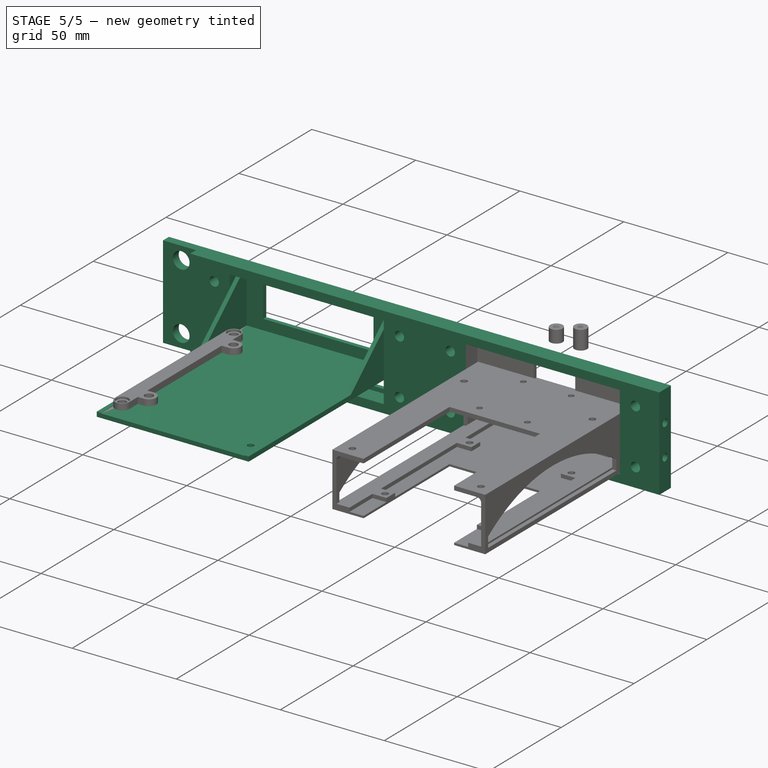
[diagram: stage 5 of 5 — iso view after this stage's code; geometry added in this stage tinted green]
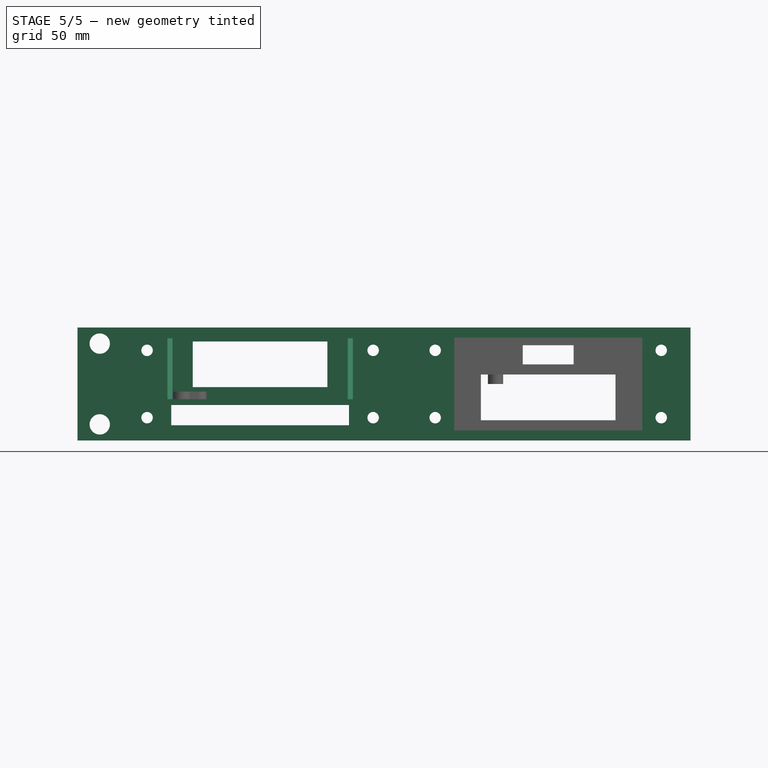
[diagram: stage 5 of 5 — front view after this stage's code; geometry added in this stage tinted green]
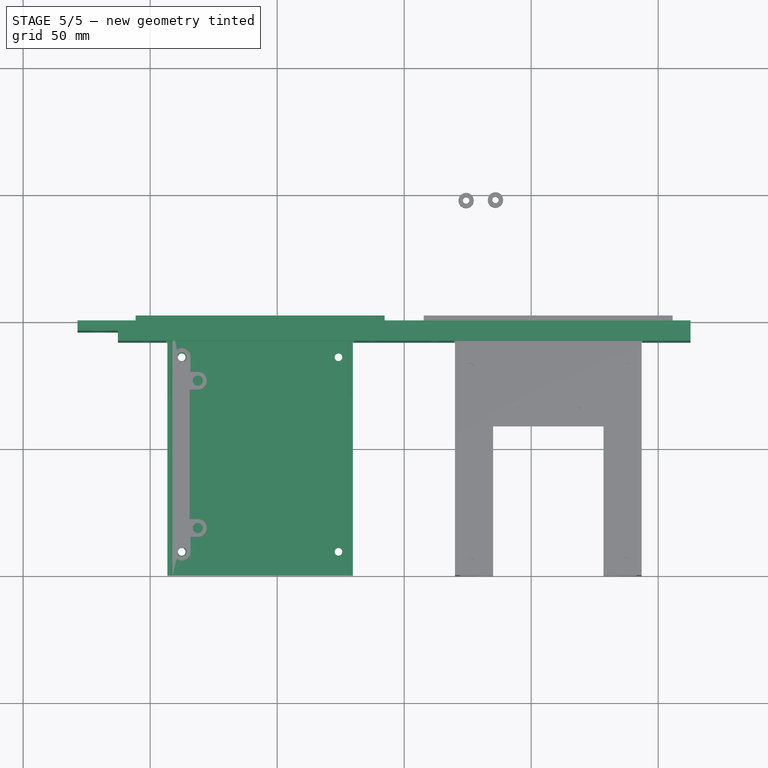
[diagram: stage 5 of 5 — top view after this stage's code; geometry added in this stage tinted green]
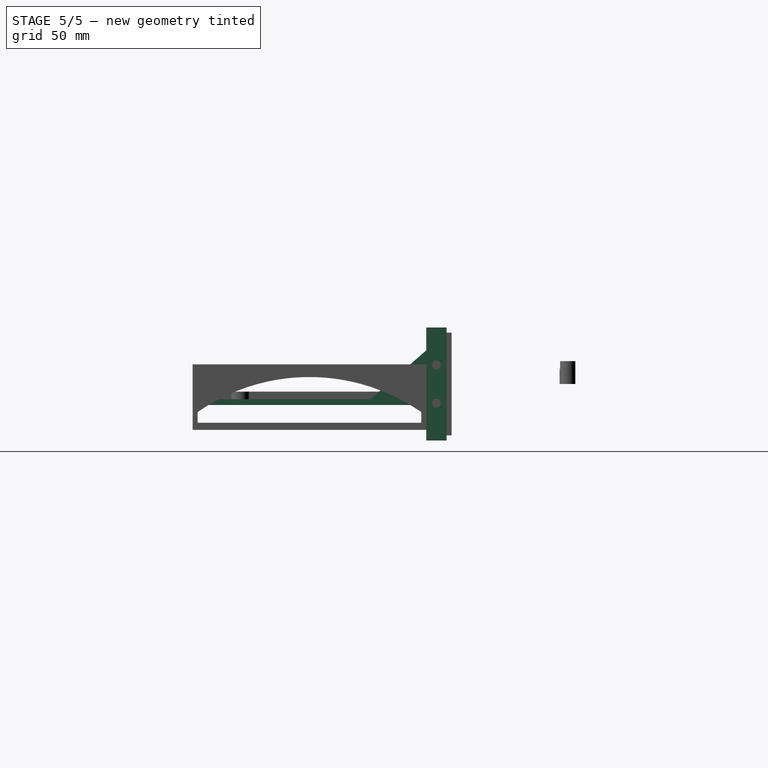
[diagram: stage 5 of 5 — right view after this stage's code; geometry added in this stage tinted green]
FEATURE [Sketcher::SketchObject] Sketch004  label="MainSketch"
  FullyConstrained = true
  MapMode = 5
  Placement = pos=(0,0,0) rot=(1,0,0;1.5708rad)
  Support = -> [XZ_Plane]
  sketch-geometry (23):
    g0: LineSegment StartX=-128.59 StartY=22.25 StartZ=0 EndX=112.71 EndY=22.25 EndZ=0
    g1: LineSegment StartX=112.71 StartY=22.25 StartZ=0 EndX=112.71 EndY=-22.25 EndZ=0
    g2: LineSegment StartX=112.71 StartY=-22.25 StartZ=0 EndX=-128.59 EndY=-22.25 EndZ=0
    g3: LineSegment StartX=-128.59 StartY=-22.25 StartZ=0 EndX=-128.59 EndY=22.25 EndZ=0
    g4: LineSegment StartX=-93.7125 StartY=18.25 StartZ=0 EndX=-19.7125 EndY=18.25 EndZ=0
    g5: LineSegment StartX=-19.7125 StartY=18.25 StartZ=0 EndX=-19.7125 EndY=-18.25 EndZ=0
    g6: LineSegment StartX=-19.7125 StartY=-18.25 StartZ=0 EndX=-93.7125 EndY=-18.25 EndZ=0
    g7: LineSegment StartX=-93.7125 StartY=-18.25 StartZ=0 EndX=-93.7125 EndY=18.25 EndZ=0
    g8: Circle CenterX=-119.85 CenterY=15.9 CenterZ=0 NormalX=0 NormalY=0 NormalZ=1 AngleXU=0 Radius=4
    g9: Circle CenterX=-119.85 CenterY=-15.9 CenterZ=0 NormalX=0 NormalY=0 NormalZ=1 AngleXU=0 Radius=4
    g10: LineSegment StartX=19.7125 StartY=18.25 StartZ=0 EndX=93.7125 EndY=18.25 EndZ=0
    g11: LineSegment StartX=93.7125 StartY=18.25 StartZ=0 EndX=93.7125 EndY=-18.25 EndZ=0
    g12: LineSegment StartX=93.7125 StartY=-18.25 StartZ=0 EndX=19.7125 EndY=-18.25 EndZ=0
    g13: LineSegment StartX=19.7125 StartY=-18.25 StartZ=0 EndX=19.7125 EndY=18.25 EndZ=0
    g14: Circle CenterX=-101.213 CenterY=13.25 CenterZ=0 NormalX=0 NormalY=0 NormalZ=1 AngleXU=0 Radius=2.25
    g15: Circle CenterX=-101.213 CenterY=-13.25 CenterZ=0 NormalX=0 NormalY=0 NormalZ=1 AngleXU=0 Radius=2.25
    g16: Circle CenterX=-12.2125 CenterY=-13.25 CenterZ=0 NormalX=0 NormalY=0 NormalZ=1 AngleXU=0 Radius=2.25
    g17: Circle CenterX=-12.2125 CenterY=13.25 CenterZ=0 NormalX=0 NormalY=0 NormalZ=1 AngleXU=0 Radius=2.25
    g18: Circle CenterX=12.2125 CenterY=13.25 CenterZ=0 NormalX=0 NormalY=0 NormalZ=1 AngleXU=0 Radius=2.25
    g19: Circle CenterX=12.2125 CenterY=-13.25 CenterZ=0 NormalX=0 NormalY=0 NormalZ=1 AngleXU=0 Radius=2.25
    g20: Circle CenterX=101.213 CenterY=-13.25 CenterZ=0 NormalX=0 NormalY=0 NormalZ=1 AngleXU=0 Radius=2.25
    g21: Circle CenterX=101.213 CenterY=13.25 CenterZ=0 NormalX=0 NormalY=0 NormalZ=1 AngleXU=0 Radius=2.25
    g22: GeomPoint X=-56.7125 Y=2.3e-15 Z=0
  constraints (66):
    c: Coincident(g0,g1)
    c: Coincident(g1,g2)
    c: Coincident(g2,g3)
    c: Coincident(g3,g0)
    c: Horizontal(g0)
    c: Horizontal(g2)
    c: Vertical(g1)
    c: Coincident(g4,g5)
    c: Coincident(g5,g6)
    c: Coincident(g6,g7)
    c: Coincident(g7,g4)
    c: Horizontal(g6)
    c: Vertical(g7)
    c: Coincident(g10,g11)
    c: Coincident(g11,g12)
    c: Coincident(g12,g13)
    c: Coincident(g13,g10)
    c: Horizontal(g10)
    c: Horizontal(g12)
    c: Vertical(g11)
    c: Symmetric(g4,g5,g-1)
    c: Symmetric(g12,g10,g-1)
    c: Symmetric(g4,g10,g-2)
    c: Equal(g10,g4)
    c: Horizontal(g14,g17)
    c: Horizontal(g17,g18)
    c: Horizontal(g18,g21)
    c: Horizontal(g15,g16)
    c: Horizontal(g16,g19)
    c: Horizontal(g19,g20)
    c: Vertical(g14,g15)
    c: Vertical(g17,g16)
    c: Vertical(g18,g19)
    c: Vertical(g20,g21)
    c: Equal(g19,g18)
    c: Equal(g19,g17)
    c: Equal(g19,g16)
    c: Equal(g19,g15)
    c: Equal(g19,g14)
    c: Equal(g19,g21)
    c: Equal(g19,g20)
    c: Diameter(g19) = 4.5
    c: DistanceX(g4,g17) = 7.5
    c: DistanceY(g17,g4) = 5
    c: DistanceY(g5,g16) = 5
    c: DistanceX(g18,g10) = 7.5
    c: DistanceX(g14,g4) = 7.5
    c: DistanceX(g10,g21) = 7.5
    c: Symmetric(g0,g2,g-1)
    c: DistanceX(g0,g-1) = 128.59
    c: DistanceX(g-1,g0) = 112.71
    c: Horizontal(g4,g4)
    c: DistanceY(g11,g11) = 36.5  'window_height'
    c: DistanceX(g10,g10) = 74  'window_width'
    c: DistanceX(g4,g4) = 74
    c: DistanceY(g1,g1) = 44.5
    c: DistanceX(g8,g0) = 232.56
    c: Symmetric(g9,g8,g-1)
    c: DistanceY(g9,g-1) = 15.9
    c: Equal(g8,g9)
    c: Diameter(g8) = 8
    c: Symmetric(g15,g17,g22)
    c: DistanceX(g22,g-1) = 56.7125  'window_width_offset'
    c: DistanceX(g14,g17) = 89  'hole_to_hole_width'
    c: Diameter(g14) = 4.5  'hole_dia'
    c: DistanceY(g16,g17) = 26.5  'hole_to_hole_height'
FEATURE [PartDesign::Pad] Pad003  label="MainPad"
  Direction = (0,-1,-2e-16)
  Length = 8
  Length2 = 10
  Placement = pos=(0,0,0) rot=(1,0,0;1.5708rad)
  Profile = -> Sketch004
  ReferenceAxis = -> Sketch004 [N_Axis]
  Type = 0
FEATURE [Sketcher::SketchObject] Sketch  label="RackBrimSketch"
  AttachmentOffset = pos=(0,0,8) rot=(0,0,1;0rad)
  FullyConstrained = true
  MapMode = 5
  Placement = pos=(0,-8,-1.8e-15) rot=(1,0,0;1.5708rad)
  Support = -> [XZ_Plane]
  sketch-geometry (4):
    g0: LineSegment StartX=-128.59 StartY=22.25 StartZ=0 EndX=-112.715 EndY=22.25 EndZ=0
    g1: LineSegment StartX=-112.715 StartY=22.25 StartZ=0 EndX=-112.715 EndY=-22.25 EndZ=0
    g2: LineSegment StartX=-112.715 StartY=-22.25 StartZ=0 EndX=-128.59 EndY=-22.25 EndZ=0
    g3: LineSegment StartX=-128.59 StartY=-22.25 StartZ=0 EndX=-128.59 EndY=22.25 EndZ=0
  constraints (11):
    c: Coincident(g0,g1)
    c: Coincident(g1,g2)
    c: Coincident(g2,g3)
    c: Coincident(g3,g0)
    c: Horizontal(g0)
    c: Horizontal(g2)
    c: Vertical(g1)
    c: DistanceY(g3,g3) = 44.5
    c: Symmetric(g0,g2,g-1)
    c: DistanceX(g0,g0) = 15.875
    c: DistanceX(g0,g-1) = 128.59
FEATURE [PartDesign::Pocket] Pocket  label="RackBrimPocket"
  BaseFeature = -> Pad003
  Direction = (0,1,2e-16)
  Length = 4
  Length2 = 5
  Placement = pos=(0,0,0) rot=(1,0,0;1.5708rad)
  Profile = -> Sketch
  ReferenceAxis = -> Sketch [N_Axis]
  Type = 0
FEATURE [Sketcher::SketchObject] Sketch005  label="ScrewSketch"
  FullyConstrained = true
  MapMode = 5
  Placement = pos=(112.71,0,0) rot=(0.707107,0,0.707107;3.14159rad)
  Support = -> [Pocket]
  sketch-geometry (2):
    g0: Circle CenterX=-7.5 CenterY=4 CenterZ=0 NormalX=0 NormalY=0 NormalZ=1 AngleXU=0 Radius=1.75
    g1: Circle CenterX=7.5 CenterY=4 CenterZ=0 NormalX=0 NormalY=0 NormalZ=1 AngleXU=0 Radius=1.75
  constraints (5):
    c: DistanceY(g-1,g0) = 4
    c: Symmetric(g0,g1,g-2)
    c: Equal(g0,g1)
    c: DistanceX(g0,g-1) = 7.5
    c: Diameter(g0) = 3.5
FEATURE [PartDesign::Pocket] Pocket001  label="ScrewPocket"
  BaseFeature = -> Pocket
  Direction = (-1,0,2e-16)
  Length = 10
  Length2 = 5
  Placement = pos=(0,0,0) rot=(1,0,0;1.5708rad)
  Profile = -> Sketch005
  ReferenceAxis = -> Sketch005 [N_Axis]
  Type = 0
FEATURE [Sketcher::SketchObject] Sketch006  label="HexScrewSketch"
  AttachmentOffset = pos=(0,0,-20) rot=(0,0,1;0rad)
  ExternalGeometry = -> [Pocket001]
  FullyConstrained = true
  MapMode = 5
  Placement = pos=(92.71,0,4.4e-15) rot=(0.707107,0,0.707107;3.14159rad)
  Support = -> [Pocket001]
  sketch-geometry (8):
    g0: LineSegment StartX=11 StartY=4 StartZ=0 EndX=9.25 EndY=7.03109 EndZ=0
    g1: LineSegment StartX=9.25 StartY=7.03109 StartZ=0 EndX=5.75 EndY=7.03109 EndZ=0
    g2: LineSegment StartX=5.75 StartY=7.03109 StartZ=0 EndX=4 EndY=4 EndZ=0
    g3: LineSegment StartX=4 StartY=4 StartZ=0 EndX=5.75 EndY=0.968911 EndZ=0
    g4: LineSegment StartX=5.75 StartY=0.968911 StartZ=0 EndX=9.25 EndY=0.968911 EndZ=0
    g5: LineSegment StartX=9.25 StartY=0.968911 StartZ=0 EndX=11 EndY=4 EndZ=0
    g6: Circle CenterX=7.5 CenterY=4 CenterZ=0 NormalX=0 NormalY=0 NormalZ=1 AngleXU=0 Radius=3.5
    g7: Circle CenterX=-7.5 CenterY=4 CenterZ=0 NormalX=0 NormalY=0 NormalZ=1 AngleXU=0 Radius=3.5
  constraints (18):
    c: Coincident(g0,g1)
    c: Coincident(g1,g2)
    c: Coincident(g2,g3)
    c: Coincident(g3,g4)
    c: Coincident(g4,g5)
    c: Coincident(g5,g0)
    c: Equal(g0, g1-g5) x5
    c: PointOnObject(g0,g6)
    c: PointOnObject(g1,g6)
    c: PointOnObject(g2,g6)
    c: PointOnObject(g3,g6)
    c: PointOnObject(g4,g6)
    c: PointOnObject(g5,g6)
    c: Coincident(g6,g-4)
    c: Coincident(g7,g-3)
    c: Diameter(g6) = 7
    c: Diameter(g7) = 7
    c: Horizontal(g0,g1)
FEATURE [PartDesign::Pocket] Pocket002  label="HexScrewPocket"
  BaseFeature = -> Pocket001
  Direction = (-1,0,2e-16)
  Length = 15
  Length2 = 5
  Placement = pos=(0,0,0) rot=(1,0,0;1.5708rad)
  Profile = -> Sketch006
  ReferenceAxis = -> Sketch006 [N_Axis]
  Reversed = true
  Type = 0
FEATURE [Sketcher::SketchObject] Sketch011  label="SkrewSketch"
  AttachmentOffset = pos=(0,0,-6) rot=(0,0,1;0rad)
  ExternalGeometry = -> [Pad004]
  FullyConstrained = true
  MapMode = 5
  Placement = pos=(0,0,-6) rot=(0,0,1;0rad)
  Support = -> [XY_Plane001]
  sketch-geometry (4):
    g0: Circle CenterX=-87.57 CenterY=-14 CenterZ=0 NormalX=0 NormalY=0 NormalZ=1 AngleXU=0 Radius=1.5
    g1: Circle CenterX=-25.86 CenterY=-14 CenterZ=0 NormalX=0 NormalY=0 NormalZ=1 AngleXU=0 Radius=1.5
    g2: Circle CenterX=-87.57 CenterY=-90.6 CenterZ=0 NormalX=0 NormalY=0 NormalZ=1 AngleXU=0 Radius=1.5
    g3: Circle CenterX=-25.86 CenterY=-90.6 CenterZ=0 NormalX=0 NormalY=0 NormalZ=1 AngleXU=0 Radius=1.5
  constraints (14):
    c: DistanceY(g1,g-1) = 14  'hole_depth_offset'
    c: Horizontal(g1,g0)
    c: DistanceY(g3,g-1) = 90.6
    c: Horizontal(g3,g2)
    c: DistanceX(g2,g3) = 61.71  'hole_diff'
    c: Equal(g2,g0)
    c: Equal(g2,g1)
    c: Equal(g2,g3)
    c: Diameter(g2) = 3
    c: Vertical(g3,g1)
    c: Vertical(g0,g2)
    c: DistanceY(g3,g1) = 76.6  'hole_depth_diff'
    c: DistanceX(g-6,g-6) = 0  'bredd'
    c: DistanceX(g1,g-1) = 25.86  'width_offset'
FEATURE [PartDesign::Pocket] Pocket005  label="SkrewPocket"
  BaseFeature = -> Pad004
  Direction = (0,0,-1)
  Length = 5
  Length2 = 5
  Placement = pos=(0,0,0) rot=(1,0,0;1.5708rad)
  Profile = -> Sketch011
  ReferenceAxis = -> Sketch011 [N_Axis]
  Type = 0
FEATURE [Sketcher::SketchObject] Sketch012  label="HalfCutSketch"
  ExternalGeometry = -> [Pocket005]
  FullyConstrained = true
  MapMode = 5
  Placement = pos=(0,0,0) rot=(0.57735,0.57735,0.57735;2.0944rad)
  Support = -> [YZ_Plane001]
  sketch-geometry (4):
    g0: LineSegment StartX=-109.56 StartY=-6 StartZ=0 EndX=-30 EndY=-6 EndZ=0
    g1: LineSegment StartX=-109.56 StartY=-6 StartZ=0 EndX=-109.56 EndY=20.25 EndZ=0
    g2: LineSegment StartX=-109.56 StartY=20.25 StartZ=0 EndX=0 EndY=20.25 EndZ=0
    g3: LineSegment StartX=-30 StartY=-6 StartZ=0 EndX=0 EndY=20.25 EndZ=0
  constraints (11):
    c: Coincident(g0,g1)
    c: Vertical(g1)
    c: Coincident(g2,g1)
    c: Horizontal(g1,g2)
    c: DistanceX(g0,g-1) = 30
    c: DistanceY(g0,g-1) = 6
    c: DistanceY(g0,g-1) = 6
    c: DistanceX(g0,g0) = 79.56
    c: Coincident(g0,g3)
    c: Coincident(g3,g2)
    c: Coincident(g2,g-3)
FEATURE [PartDesign::Pocket] Pocket006  label="HalfCutPocket"
  BaseFeature = -> Pocket005
  Direction = (-1,2e-16,-3e-16)
  Length = 5
  Length2 = 5
  Placement = pos=(0,0,0) rot=(1,0,0;1.5708rad)
  Profile = -> Sketch012
  ReferenceAxis = -> Sketch012 [N_Axis]
  Type = 1
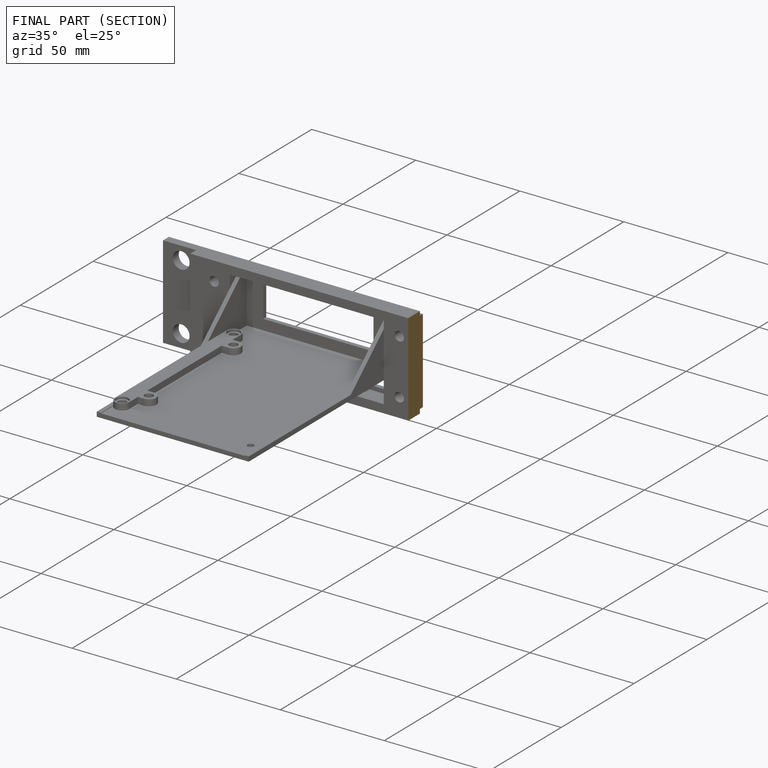
[diagram: finished part — half-section view (interior)]
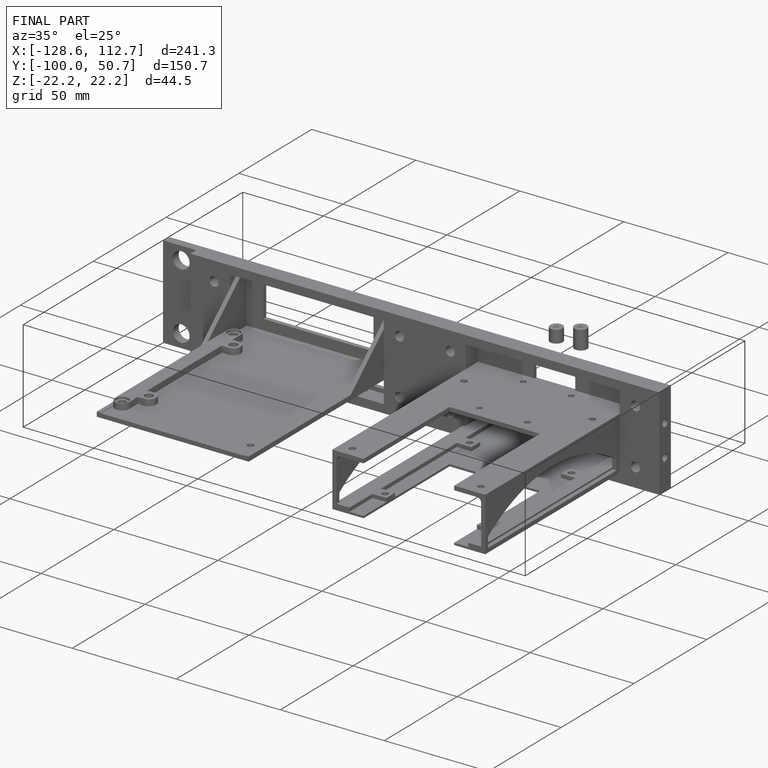
[diagram: finished part — iso view with bounding-box wireframe]
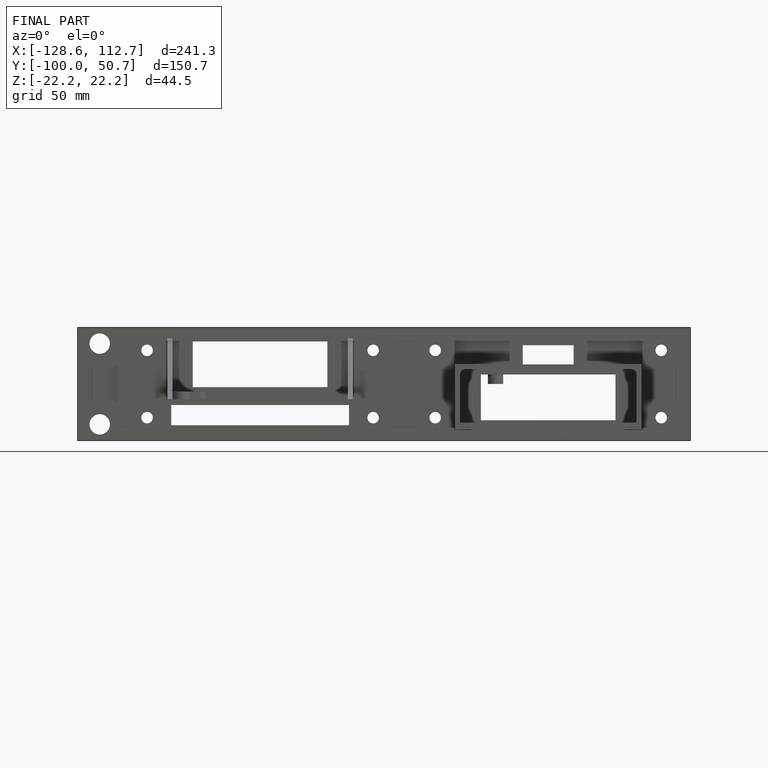
[diagram: finished part — front view with bounding-box wireframe]
